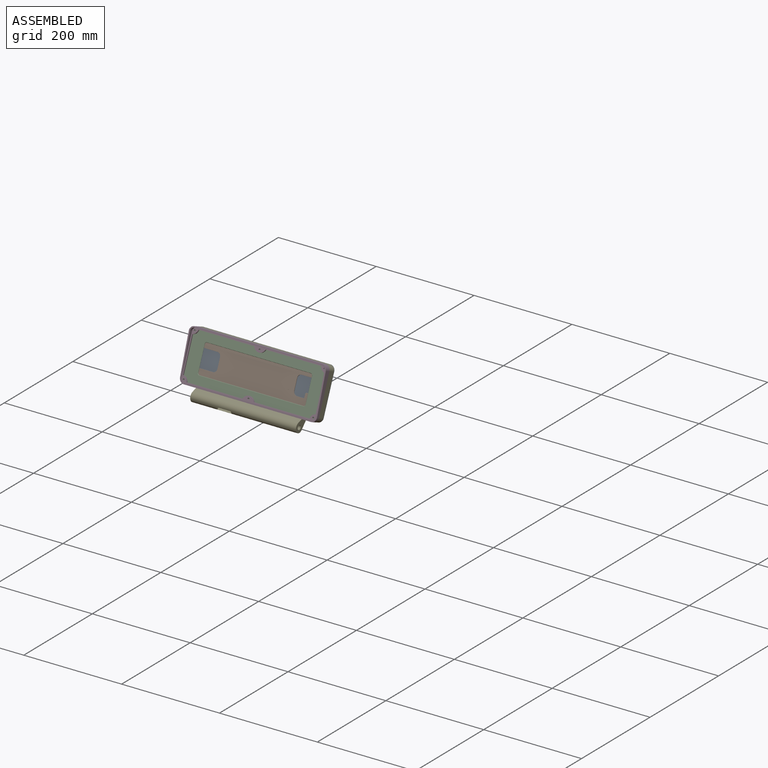
[diagram: assembled view]
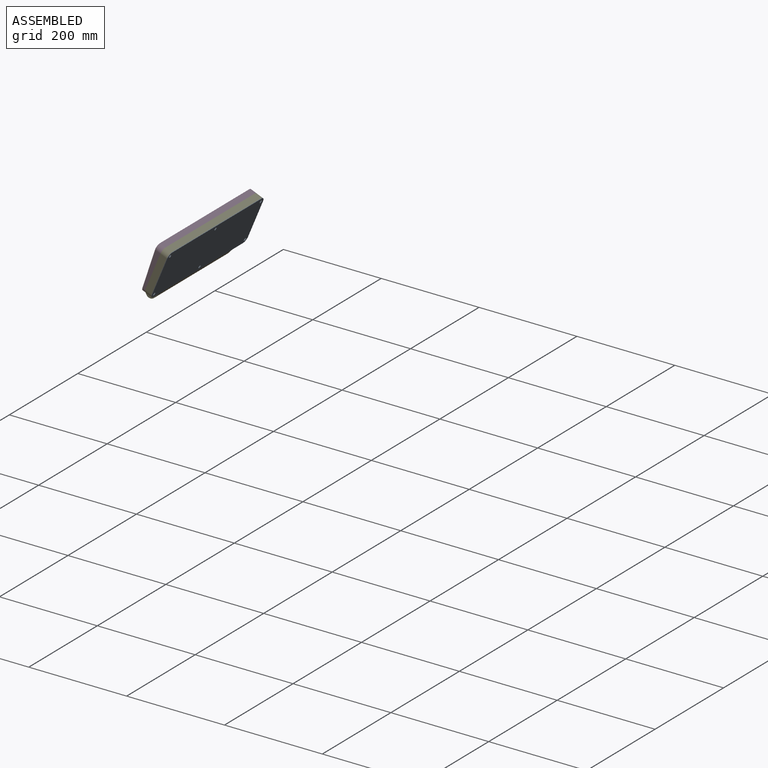
[diagram: assembled view, second angle]
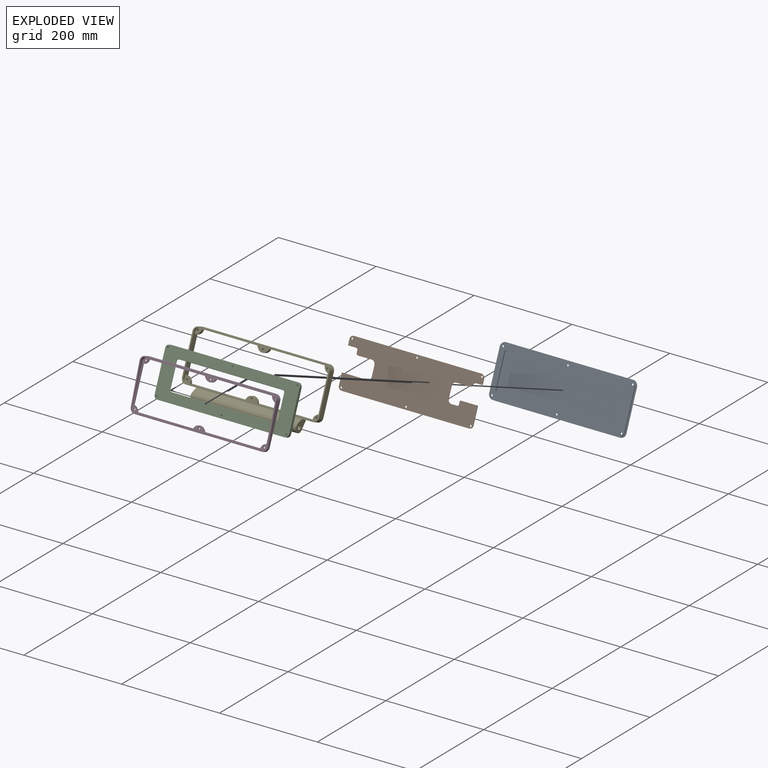
[diagram: exploded view]
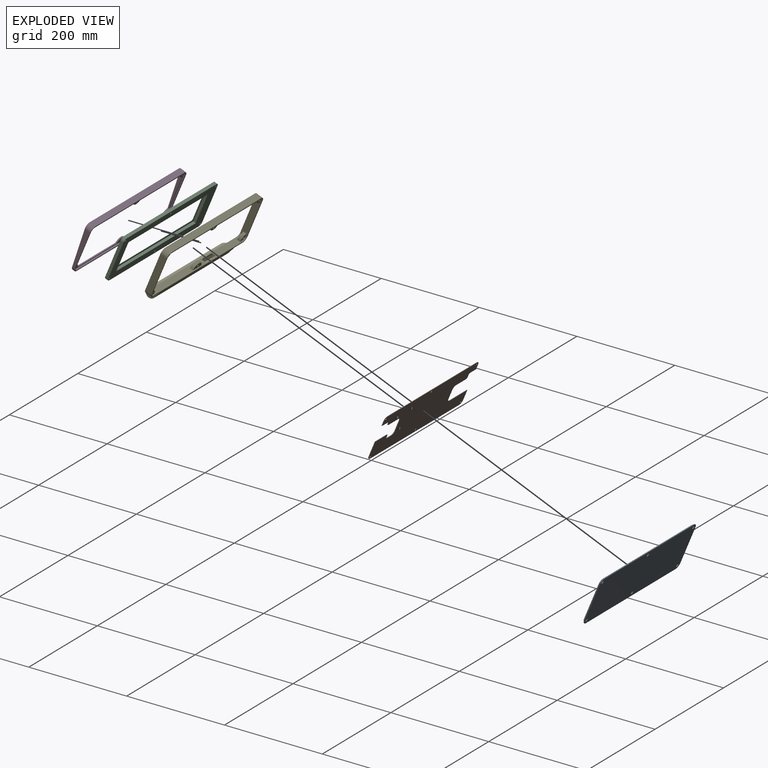
[diagram: exploded view, second angle]
FCSTD DOCUMENT  (FreeCAD 1.0R39319 (Git))
Label: Assembly_TopEnclosure0
License: All rights reserved
LicenseURL: https://en.wikipedia.org/wiki/All_rights_reserved
objects: App::FeaturePython×9, App::Link×5, Assembly::JointGroup×1, Assembly::AssemblyObject×1
EXTERNAL_REF file=TopEnclosureShell.FCStd obj=Body002
EXTERNAL_REF file=TopEnclosureDisplayFront.FCStd obj=Body
EXTERNAL_REF file=TopEnclosureDisplayBack_v3.FCStd obj=Body
EXTERNAL_REF file=TopEnclosureHood_v2.FCStd obj=Body
EXTERNAL_REF file=TopEnclosureBack_v2.FCStd obj=Body

FEATURE [App::Link] Top_Enclosure_Shell___2  label="Top Enclosure Shell - 2"
  LinkPlacement = pos=(0,4.5253,19.7273) rot=(1,0,0;1.1781rad)
  LinkedObject = -> <external TopEnclosureShell.FCStd>#Body002
  Placement = pos=(0,4.5253,19.7273) rot=(1,0,0;1.1781rad)
FEATURE [App::Link] Top_Enclosure_Display_Front  label="Top Enclosure Display Front"
  LinkPlacement = pos=(3e-15,-4.71349,23.5542) rot=(1,0,0;1.1781rad)
  LinkedObject = -> <external TopEnclosureDisplayFront.FCStd>#Body
  Placement = pos=(3e-15,-4.71349,23.5542) rot=(1,0,0;1.1781rad)
FEATURE [App::FeaturePython] GroundedJoint  # Assembly grounded joint (typed FeaturePython)
  ObjectToGround = -> Top_Enclosure_Shell___2
  Placement = pos=(0,4.5253,19.7273) rot=(1,0,0;1.1781rad)
FEATURE [App::Link] Top_Enclosure_Display_Back  label="Top Enclosure Display Back"
  LinkPlacement = pos=(0,-3.78961,23.1715) rot=(1,0,0;1.1781rad)
  LinkedObject = -> <external TopEnclosureDisplayBack_v3.FCStd>#Body
  Placement = pos=(0,-3.78961,23.1715) rot=(1,0,0;1.1781rad)
FEATURE [App::FeaturePython] Joint  label="Fixed"  # Assembly joint (typed FeaturePython)
  Activated = true
  AngleMax = 0
  AngleMin = 0
  Detach1 = false
  Detach2 = false
  Distance = 0
  Distance2 = 0
  EnableAngleMax = false
  EnableAngleMin = false
  EnableLengthMax = false
  EnableLengthMin = false
  JointType = 0 (Fixed)
  LengthMax = 0
  LengthMin = 0
  Placement1 = pos=(0,42.4,9) rot=(0,0,1;3.14159rad)
  Placement2 = pos=(0,42.4,5.3e-15) rot=(0,1,0;3.14159rad)
  Reference1 = -> Assembly [Top_Enclosure_Shell___2.Edge160,Top_Enclosure_Shell___2.Edge160]
  Reference2 = -> Assembly [Top_Enclosure_Display_Back.Edge38,Top_Enclosure_Display_Back.Edge38]
FEATURE [App::FeaturePython] Joint001  label="Fixed001"  # Assembly joint (typed FeaturePython)
  Activated = true
  AngleMax = 0
  AngleMin = 0
  Detach1 = false
  Detach2 = false
  Distance = 0
  Distance2 = 0
  EnableAngleMax = false
  EnableAngleMin = false
  EnableLengthMax = false
  EnableLengthMin = false
  JointType = 0 (Fixed)
  LengthMax = 0
  LengthMin = 0
  Placement1 = pos=(-132.4,42.4,9) rot=(0,0,1;3.14159rad)
  Placement2 = pos=(-132.4,42.4,5.3e-15) rot=(0,1,0;3.14159rad)
  Reference1 = -> Assembly [Top_Enclosure_Shell___2.Edge134,Top_Enclosure_Shell___2.Edge134]
  Reference2 = -> Assembly [Top_Enclosure_Display_Back.Edge37,Top_Enclosure_Display_Back.Edge37]
FEATURE [App::FeaturePython] Joint002  label="Fixed002"  # Assembly joint (typed FeaturePython)
  Activated = true
  AngleMax = 0
  AngleMin = 0
  Detach1 = false
  Detach2 = false
  Distance = 0
  Distance2 = 0
  EnableAngleMax = false
  EnableAngleMin = false
  EnableLengthMax = false
  EnableLengthMin = false
  JointType = 0 (Fixed)
  LengthMax = 0
  LengthMin = 0
  Placement1 = pos=(132.4,42.4,1) rot=(0,0,1;0rad)
  Placement2 = pos=(132.4,42.4,3.2e-14) rot=(0,0,1;0rad)
  Reference1 = -> Assembly [Top_Enclosure_Display_Back.Edge119,Top_Enclosure_Display_Back.Edge119]
  Reference2 = -> Assembly [Top_Enclosure_Display_Front.Edge66,Top_Enclosure_Display_Front.Edge66]
FEATURE [App::FeaturePython] Joint003  label="Fixed003"  # Assembly joint (typed FeaturePython)
  Activated = true
  AngleMax = 0
  AngleMin = 0
  Detach1 = false
  Detach2 = false
  Distance = 0
  Distance2 = 0
  EnableAngleMax = false
  EnableAngleMin = false
  EnableLengthMax = false
  EnableLengthMin = false
  JointType = 0 (Fixed)
  LengthMax = 0
  LengthMin = 0
  Placement1 = pos=(-132.4,-42.4,1) rot=(0,0,1;3.14159rad)
  Placement2 = pos=(-132.4,-42.4,-2.31e-14) rot=(0,0,1;3.14159rad)
  Reference1 = -> Assembly [Top_Enclosure_Display_Back.Edge109,Top_Enclosure_Display_Back.Edge109]
  Reference2 = -> Assembly [Top_Enclosure_Display_Front.Edge56,Top_Enclosure_Display_Front.Edge56]
FEATURE [App::Link] Top_Enclosure_Hood  label="Top Enclosure Hood"
  LinkPlacement = pos=(6.9e-15,-8.40901,25.0849) rot=(1,0,0;1.1781rad)
  LinkedObject = -> <external TopEnclosureHood_v2.FCStd>#Body
  Placement = pos=(6.9e-15,-8.40901,25.0849) rot=(1,0,0;1.1781rad)
FEATURE [App::FeaturePython] Joint004  label="Fixed004"  # Assembly joint (typed FeaturePython)
  Activated = true
  AngleMax = 0
  AngleMin = 0
  Detach1 = false
  Detach2 = false
  Distance = 0
  Distance2 = 0
  EnableAngleMax = false
  EnableAngleMin = false
  EnableLengthMax = false
  EnableLengthMin = false
  JointType = 0 (Fixed)
  LengthMax = 0
  LengthMin = 0
  Placement1 = pos=(130,40,14) rot=(0,0,1;0rad)
  Placement2 = pos=(130,40,0) rot=(0,0,1;0rad)
  Reference1 = -> Assembly [Top_Enclosure_Shell___2.Edge31,Top_Enclosure_Shell___2.Edge31]
  Reference2 = -> Assembly [Top_Enclosure_Hood.Edge9,Top_Enclosure_Hood.Edge9]
FEATURE [App::FeaturePython] Joint005  label="Fixed005"  # Assembly joint (typed FeaturePython)
  Activated = true
  AngleMax = 0
  AngleMin = 0
  Detach1 = false
  Detach2 = false
  Distance = 0
  Distance2 = 0
  EnableAngleMax = false
  EnableAngleMin = false
  EnableLengthMax = false
  EnableLengthMin = false
  JointType = 0 (Fixed)
  LengthMax = 0
  LengthMin = 0
  Placement1 = pos=(-130,-40,14) rot=(0,0,1;0rad)
  Placement2 = pos=(-130,-40,-7.1e-15) rot=(0,0,1;0rad)
  Reference1 = -> Assembly [Top_Enclosure_Shell___2.Edge10,Top_Enclosure_Shell___2.Edge10]
  Reference2 = -> Assembly [Top_Enclosure_Hood.Edge5,Top_Enclosure_Hood.Edge5]
FEATURE [App::Link] Top_Enclosure_Back  label="Top Enclosure Back"
  LinkPlacement = pos=(1e-14,2.40038,20.6075) rot=(1,0,0;4.31969rad)
  LinkedObject = -> <external TopEnclosureBack_v2.FCStd>#Body
  Placement = pos=(1e-14,2.40038,20.6075) rot=(1,0,0;4.31969rad)
FEATURE [App::FeaturePython] Joint006  label="Fixed006"  # Assembly joint (typed FeaturePython)
  Activated = true
  AngleMax = 0
  AngleMin = 0
  Detach1 = false
  Detach2 = false
  Distance = 0
  Distance2 = 0
  EnableAngleMax = false
  EnableAngleMin = false
  EnableLengthMax = false
  EnableLengthMin = false
  JointType = 0 (Fixed)
  LengthMax = 0
  LengthMin = 0
  Placement1 = pos=(130,-40,2.3) rot=(0,0,1;0rad)
  Placement2 = pos=(130,40,5.3e-15) rot=(0,0,1;0rad)
  Reference1 = -> Assembly [Top_Enclosure_Back.Edge36,Top_Enclosure_Back.Edge36]
  Reference2 = -> Assembly [Top_Enclosure_Shell___2.Edge16,Top_Enclosure_Shell___2.Edge16]
FEATURE [App::FeaturePython] Joint007  label="Fixed007"  # Assembly joint (typed FeaturePython)
  Activated = true
  AngleMax = 0
  AngleMin = 0
  Detach1 = false
  Detach2 = false
  Distance = 0
  Distance2 = 0
  EnableAngleMax = false
  EnableAngleMin = false
  EnableLengthMax = false
  EnableLengthMin = false
  JointType = 0 (Fixed)
  LengthMax = 0
  LengthMin = 0
  Placement1 = pos=(-130,-40,-4.4e-15) rot=(0,0,1;0rad)
  Placement2 = pos=(-130,40,2.3) rot=(0,0,1;0rad)
  Reference1 = -> Assembly [Top_Enclosure_Shell___2.Edge9,Top_Enclosure_Shell___2.Edge9]
  Reference2 = -> Assembly [Top_Enclosure_Back.Edge31,Top_Enclosure_Back.Edge31]
FEATURE [Assembly::JointGroup] Joints
  Group = -> [GroundedJoint,Joint,Joint001,Joint002,Joint003,Joint004,Joint005,Joint006,Joint007]
FEATURE [Assembly::AssemblyObject] Assembly
  Group = -> [Joints,Top_Enclosure_Shell___2,Top_Enclosure_Display_Front,GroundedJoint,Top_Enclosure_Display_Back,Joint,Joint001,Joint002,Joint003,Top_Enclosure_Hood,Joint004,Joint005,Top_Enclosure_Back,Joint006,Joint007]
  Origin = -> Origin
  Type = Assembly

RESOLVED EXTERNAL PARTS (link-assembly join: the EXTERNAL_REF files above that resolve inside this repo's crawl, each included once):
---- part TopEnclosureBack_v2.FCStd = doc fcstd_1d1bf80cae44 ----
FCSTD DOCUMENT  (FreeCAD 1.0R39319 (Git))
Label: TopEnclosureBack_v2
License: All rights reserved
LicenseURL: https://en.wikipedia.org/wiki/All_rights_reserved
objects: PartDesign::SubShapeBinder×4, Sketcher::SketchObject×3, PartDesign::Pocket×3, PartDesign::Mirrored×3, App::Link×2, PartDesign::Pad×2, PartDesign::Hole×2, PartDesign::MultiTransform×1, PartDesign::Body×1, App::VarSet×1
note: 40 computed .brp shape members not serialized (recipe doc carries the construction recipe); baked Part::Feature solids carry a one-line shape summary decoded from their .brp
EXTERNAL_REF file=TopEnclosure.FCStd obj=Sketch
EXTERNAL_REF file=TopEnclosure.FCStd obj=Link

FEATURE [App::Link] Link  label="MasterSketch"
  LinkedObject = -> <external TopEnclosure.FCStd>#Sketch
FEATURE [App::Link] Link001  label="Vars"
  LinkedObject = -> <external TopEnclosure.FCStd>#Link
FEATURE [PartDesign::SubShapeBinder] Binder
  BindCopyOnChange = 0
  BindMode = 0
  ClaimChildren = false
  Context = -> Body [Binder.]
  Fuse = false
  MakeFace = true
  OffsetFill = false
  OffsetIntersection = false
  OffsetJoinType = 0
  OffsetOpenResult = false
  PartialLoad = false
  Refine = true
  Relative = true
  Support = -> [Link[Edge13,Edge14,Edge15,Edge12,Edge11,Edge10,Edge9,Edge16]]
  _Version = 2
FEATURE [PartDesign::SubShapeBinder] Binder001
  BindCopyOnChange = 0
  BindMode = 0
  ClaimChildren = false
  Context = -> Body [Binder001.]
  Fuse = false
  MakeFace = true
  OffsetFill = false
  OffsetIntersection = false
  OffsetJoinType = 0
  OffsetOpenResult = false
  PartialLoad = false
  Placement = pos=(0,0,2.3) rot=(0,0,1;0rad)
  Refine = true
  Relative = true
  Support = -> [Link[Edge18,Edge17,Edge24,Edge23,Edge19,Edge22,Edge21,Edge20]]
  _Version = 2
  expr: .Placement.Base.z = <<LocalVars>>.bottom_offset
FEATURE [PartDesign::SubShapeBinder] Binder002
  BindCopyOnChange = 0
  BindMode = 0
  ClaimChildren = false
  Context = -> Body [Binder002.]
  Fuse = false
  MakeFace = true
  OffsetFill = false
  OffsetIntersection = false
  OffsetJoinType = 0
  OffsetOpenResult = false
  PartialLoad = false
  Refine = true
  Relative = true
  Support = -> [Link[Edge39]]
  _Version = 2
FEATURE [PartDesign::SubShapeBinder] Binder003
  BindCopyOnChange = 0
  BindMode = 0
  ClaimChildren = false
  Context = -> Body [Binder003.]
  Fuse = false
  MakeFace = true
  OffsetFill = false
  OffsetIntersection = false
  OffsetJoinType = 0
  OffsetOpenResult = false
  PartialLoad = false
  Refine = true
  Relative = true
  Support = -> [Link[Edge40]]
  _Version = 2
FEATURE [PartDesign::Pad] Pad
  Direction = (0,0,1)
  Length = 2.3
  Length2 = 10
  Profile = -> Binder
  Refine = true
  Suppressed = false
  Type = 0
  expr: Length = <<LocalVars>>.bottom_offset
FEATURE [PartDesign::Pad] Pad001
  BaseFeature = -> Pad
  Direction = (0,0,1)
  Length = 1
  Length2 = 10
  Profile = -> Binder001
  Refine = true
  Suppressed = false
  Type = 0
FEATURE [PartDesign::Hole] Hole
  BaseFeature = -> Pad001
  CustomThreadClearance = 0
  Depth = 600.733
  DepthType = 1
  Diameter = 3.6
  DrillForDepth = false
  DrillPoint = 1
  DrillPointAngle = 118
  HoleCutCountersinkAngle = 90
  HoleCutCustomValues = false
  HoleCutDepth = 0
  HoleCutDiameter = 6.1
  HoleCutType = 0
  ModelThread = false
  Profile = -> Binder002
  Refine = true
  Reversed = true
  Suppressed = false
  Tapered = false
  TaperedAngle = 90
  ThreadClass = 0
  ThreadDepth = 600.733
  ThreadDepthType = 0
  ThreadDirection = 0
  ThreadFit = 2
  ThreadSize = 9
  ThreadType = 1
  Threaded = false
  UseCustomThreadClearance = false
FEATURE [Sketcher::SketchObject] Sketch
  ArcFitTolerance = 1e-06
  AttachmentSupport = -> [Hole]
  ExternalGeometry = -> [Hole]
  FullyConstrained = true
  MakeInternals = false
  MapMode = 5
  Placement = pos=(0,0,3.3) rot=(0,0,1;0rad)
  expr: Constraints[19] = <<LocalVars>>.m3_nut_dia
  sketch-geometry (7):
    g0: LineSegment StartX=-129.1 StartY=42.4 StartZ=0 EndX=-130.75 EndY=45.2579 EndZ=0
    g1: LineSegment StartX=-130.75 StartY=45.2579 StartZ=0 EndX=-134.05 EndY=45.2579 EndZ=0
    g2: LineSegment StartX=-134.05 StartY=45.2579 StartZ=0 EndX=-135.7 EndY=42.4 EndZ=0
    g3: LineSegment StartX=-135.7 StartY=42.4 StartZ=0 EndX=-134.05 EndY=39.5421 EndZ=0
    g4: LineSegment StartX=-134.05 StartY=39.5421 StartZ=0 EndX=-130.75 EndY=39.5421 EndZ=0
    g5: LineSegment StartX=-130.75 StartY=39.5421 StartZ=0 EndX=-129.1 EndY=42.4 EndZ=0
    g6: Circle [constr] CenterX=-132.4 CenterY=42.4 CenterZ=0 NormalX=0 NormalY=0 NormalZ=1 AngleXU=0 Radius=3.3
  constraints (16):
    c: Coincident(g0,g1)
    c: Coincident(g1,g2)
    c: Coincident(g2,g3)
    c: Coincident(g3,g4)
    c: Coincident(g4,g5)
    c: Coincident(g5,g0)
    c: Equal(g0, g1-g5) x5
    c: PointOnObject(g0,g6)
    c: PointOnObject(g1,g6)
    c: PointOnObject(g2,g6)
    c: PointOnObject(g3,g6)
    c: PointOnObject(g4,g6)
    c: PointOnObject(g5,g6)
    c: Coincident(g6,g-3)
    c: Horizontal(g1)
    c: Diameter(g6) = 6.6
FEATURE [PartDesign::Pocket] Pocket
  BaseFeature = -> Hole
  Direction = (0,0,-1)
  Length = 3
  Length2 = 5
  Profile = -> Sketch
  ReferenceAxis = -> Sketch [N_Axis]
  Refine = true
  Suppressed = false
  Type = 0
FEATURE [PartDesign::Mirrored] Mirrored
  MirrorPlane = -> YZ_Plane
  Refine = true
  Suppressed = false
  TransformMode = 0
FEATURE [PartDesign::Mirrored] Mirrored001
  MirrorPlane = -> XZ_Plane
  Refine = true
  Suppressed = false
  TransformMode = 0
FEATURE [PartDesign::MultiTransform] MultiTransform
  BaseFeature = -> Pocket
  Originals = -> [Hole,Pocket]
  Refine = true
  Suppressed = false
  TransformMode = 0
  Transformations = -> [Mirrored,Mirrored001]
FEATURE [PartDesign::Hole] Hole001
  BaseFeature = -> MultiTransform
  CustomThreadClearance = 0
  Depth = 600.733
  DepthType = 1
  Diameter = 3.6
  DrillForDepth = false
  DrillPoint = 1
  DrillPointAngle = 118
  HoleCutCountersinkAngle = 90
  HoleCutCustomValues = false
  HoleCutDepth = 0
  HoleCutDiameter = 6.1
  HoleCutType = 0
  ModelThread = false
  Profile = -> Binder003
  Refine = true
  Reversed = true
  Suppressed = false
  Tapered = false
  TaperedAngle = 90
  ThreadClass = 0
  ThreadDepth = 600.733
  ThreadDepthType = 0
  ThreadDirection = 0
  ThreadFit = 2
  ThreadSize = 9
  ThreadType = 1
  Threaded = false
  UseCustomThreadClearance = false
FEATURE [Sketcher::SketchObject] Sketch001
  ArcFitTolerance = 1e-06
  AttachmentSupport = -> [Hole001]
  ExternalGeometry = -> [Hole001]
  FullyConstrained = true
  MakeInternals = false
  MapMode = 5
  Placement = pos=(0,0,3.3) rot=(0,0,1;0rad)
  expr: Constraints[19] = <<LocalVars>>.m3_nut_dia
  sketch-geometry (7):
    g0: LineSegment StartX=3.3 StartY=42.4 StartZ=0 EndX=1.65 EndY=45.2579 EndZ=0
    g1: LineSegment StartX=1.65 StartY=45.2579 StartZ=0 EndX=-1.65 EndY=45.2579 EndZ=0
    g2: LineSegment StartX=-1.65 StartY=45.2579 StartZ=0 EndX=-3.3 EndY=42.4 EndZ=0
    g3: LineSegment StartX=-3.3 StartY=42.4 StartZ=0 EndX=-1.65 EndY=39.5421 EndZ=0
    g4: LineSegment StartX=-1.65 StartY=39.5421 StartZ=0 EndX=1.65 EndY=39.5421 EndZ=0
    g5: LineSegment StartX=1.65 StartY=39.5421 StartZ=0 EndX=3.3 EndY=42.4 EndZ=0
    g6: Circle [constr] CenterX=0 CenterY=42.4 CenterZ=0 NormalX=0 NormalY=0 NormalZ=1 AngleXU=0 Radius=3.3
  constraints (16):
    c: Coincident(g0,g1)
    c: Coincident(g1,g2)
    c: Coincident(g2,g3)
    c: Coincident(g3,g4)
    c: Coincident(g4,g5)
    c: Coincident(g5,g0)
    c: Equal(g0, g1-g5) x5
    c: PointOnObject(g0,g6)
    c: PointOnObject(g1,g6)
    c: PointOnObject(g2,g6)
    c: PointOnObject(g3,g6)
    c: PointOnObject(g4,g6)
    c: PointOnObject(g5,g6)
    c: Coincident(g6,g-3)
    c: Horizontal(g1)
    c: Diameter(g6) = 6.6
FEATURE [PartDesign::Pocket] Pocket001
  BaseFeature = -> Hole001
  Direction = (0,0,-1)
  Length = 3
  Length2 = 5
  Profile = -> Sketch001
  ReferenceAxis = -> Sketch001 [N_Axis]
  Refine = true
  Suppressed = false
  Type = 0
FEATURE [PartDesign::Mirrored] Mirrored002
  BaseFeature = -> Pocket001
  MirrorPlane = -> XZ_Plane
  Originals = -> [Hole001,Pocket001]
  Refine = true
  Suppressed = false
  TransformMode = 0
FEATURE [Sketcher::SketchObject] Sketch002
  ArcFitTolerance = 1e-06
  AttachmentSupport = -> [XY_Plane]
  ExternalGeometry = -> [Mirrored002]
  FullyConstrained = true
  MakeInternals = false
  MapMode = 5
  sketch-geometry (12):
    g0: LineSegment StartX=127.4 StartY=-32.4 StartZ=0 EndX=127.4 EndY=32.4 EndZ=0
    g1: LineSegment StartX=122.4 StartY=37.4 StartZ=0 EndX=-122.4 EndY=37.4 EndZ=0
    g2: LineSegment StartX=-127.4 StartY=32.4 StartZ=0 EndX=-127.4 EndY=-32.4 EndZ=0
    g3: LineSegment StartX=-122.4 StartY=-37.4 StartZ=0 EndX=122.4 EndY=-37.4 EndZ=0
    g4: ArcOfCircle CenterX=122.4 CenterY=-32.4 CenterZ=0 NormalX=0 NormalY=0 NormalZ=1 AngleXU=0 Radius=5 StartAngle=4.71239 EndAngle=6.28319
    g5: ArcOfCircle CenterX=122.4 CenterY=32.4 CenterZ=0 NormalX=0 NormalY=0 NormalZ=1 AngleXU=0 Radius=5 StartAngle=0 EndAngle=1.5708
    g6: ArcOfCircle CenterX=-122.4 CenterY=32.4 CenterZ=0 NormalX=0 NormalY=0 NormalZ=1 AngleXU=0 Radius=5 StartAngle=1.5708 EndAngle=3.14159
    g7: ArcOfCircle CenterX=-122.4 CenterY=-32.4 CenterZ=0 NormalX=0 NormalY=0 NormalZ=1 AngleXU=0 Radius=5 StartAngle=3.14159 EndAngle=4.71239
    g8: GeomPoint [constr] X=-132.4 Y=42.4 Z=0
    g9: GeomPoint [constr] X=0 Y=0 Z=0
    g10: LineSegment [constr] StartX=0 StartY=47.4 StartZ=0 EndX=0 EndY=37.4 EndZ=0
    g11: LineSegment [constr] StartX=-127.4 StartY=32.4 StartZ=0 EndX=-137.4 EndY=32.4 EndZ=0
  constraints (27):
    c: Tangent(g0,g4) = -1.5708
    c: Tangent(g0,g5) = -1.5708
    c: Tangent(g1,g5) = -1.5708
    c: Tangent(g1,g6) = -1.5708
    c: Tangent(g2,g6) = -1.5708
    c: Tangent(g2,g7) = -1.5708
    c: Tangent(g3,g7) = -1.5708
    c: Tangent(g3,g4) = -1.5708
    c: Vertical(g0)
    c: Vertical(g2)
    c: Horizontal(g1)
    c: Horizontal(g3)
    c: Equal(g4,g5)
    c: Equal(g5,g6)
    c: Equal(g6,g7)
    c: Symmetric(g2,g0,g9)
    c: Coincident(g9,g-1)
    c: Coincident(g8,g-3)
    c: Diameter(g6) = 10
    c: PointOnObject(g10,g-5)
    c: PointOnObject(g10,g1)
    c: Symmetric(g10,g10,g-4)
    c: PointOnObject(g10,g-2)
    c: Coincident(g11,g2)
    c: PointOnObject(g11,g-6)
    c: Horizontal(g11)
    c: Equal(g11,g10)
FEATURE [PartDesign::Pocket] Pocket002
  BaseFeature = -> Mirrored002
  Direction = (0,0,-1)
  Length = 2.5
  Length2 = 5
  Profile = -> Sketch002
  ReferenceAxis = -> Sketch002 [N_Axis]
  Refine = true
  Reversed = true
  Suppressed = false
  Type = 0
FEATURE [PartDesign::Body] Body  label="Top Enclosure Back"
  AllowCompound = false
  Group = -> [Binder,Binder001,Binder002,Binder003,Pad,Pad001,Hole,Sketch,Pocket,MultiTransform,Mirrored,Mirrored001,Hole001,Sketch001,Pocket001,Mirrored002,Sketch002,Pocket002]
  Origin = -> Origin
  Tip = -> Pocket002
FEATURE [App::VarSet] VarSet  label="LocalVars"
  bottom_offset = 2.3
  m3_nut_dia = 6.6
  expr: bottom_offset = <<Vars>>.wall - <<Vars>>.clearance
  expr: m3_nut_dia = 6.2 + 2 * <<Vars>>.clearance
---- part TopEnclosureDisplayBack_v3.FCStd = doc fcstd_0404ac57b343 ----
FCSTD DOCUMENT  (FreeCAD 1.0R39319 (Git))
Label: TopEnclosureDisplayBack_v3
License: All rights reserved
LicenseURL: https://en.wikipedia.org/wiki/All_rights_reserved
objects: PartDesign::SubShapeBinder×7, PartDesign::Hole×3, PartDesign::Mirrored×3, Sketcher::SketchObject×3, App::Link×2, PartDesign::Pad×2, PartDesign::MultiTransform×1, PartDesign::Pocket×1, PartDesign::Chamfer×1, PartDesign::Body×1
note: 43 computed .brp shape members not serialized (recipe doc carries the construction recipe); baked Part::Feature solids carry a one-line shape summary decoded from their .brp
EXTERNAL_REF file=TopEnclosure.FCStd obj=Sketch
EXTERNAL_REF file=Spec.FCStd obj=Spreadsheet

FEATURE [App::Link] Link001  label="MasterSketch"
  LinkedObject = -> <external TopEnclosure.FCStd>#Sketch
FEATURE [PartDesign::SubShapeBinder] Binder
  BindCopyOnChange = 0
  BindMode = 0
  ClaimChildren = false
  Context = -> Body [Binder.]
  Fuse = false
  MakeFace = true
  OffsetFill = false
  OffsetIntersection = false
  OffsetJoinType = 0
  OffsetOpenResult = false
  PartialLoad = false
  Refine = true
  Relative = true
  Support = -> [Link001[Edge9,Edge10,Edge11,Edge12,Edge13,Edge14,Edge15,Edge16]]
  _Version = 2
FEATURE [PartDesign::SubShapeBinder] Binder001
  BindCopyOnChange = 0
  BindMode = 0
  ClaimChildren = false
  Context = -> Body [Binder001.]
  Fuse = false
  MakeFace = true
  OffsetFill = false
  OffsetIntersection = false
  OffsetJoinType = 0
  OffsetOpenResult = false
  PartialLoad = false
  Refine = true
  Relative = true
  Support = -> [Link001[Edge39]]
  _Version = 2
FEATURE [PartDesign::SubShapeBinder] Binder002
  BindCopyOnChange = 0
  BindMode = 0
  ClaimChildren = false
  Context = -> Body [Binder002.]
  Fuse = false
  MakeFace = true
  OffsetFill = false
  OffsetIntersection = false
  OffsetJoinType = 0
  OffsetOpenResult = false
  PartialLoad = false
  Refine = true
  Relative = true
  Support = -> [Link001[Edge40]]
  _Version = 2
FEATURE [PartDesign::Pad] Pad
  Direction = (0,0,1)
  Length = 1
  Length2 = 10
  Profile = -> Binder
  Refine = true
  Suppressed = false
  Type = 0
  expr: Length = <<Vars>>.top_enclosure_display_back_depth
FEATURE [PartDesign::Hole] Hole
  BaseFeature = -> Pad
  CustomThreadClearance = 0
  Depth = 25
  DepthType = 0
  Diameter = 3.6
  DrillForDepth = false
  DrillPoint = 1
  DrillPointAngle = 118
  HoleCutCountersinkAngle = 90
  HoleCutCustomValues = false
  HoleCutDepth = 0
  HoleCutDiameter = 6.1
  HoleCutType = 0
  ModelThread = false
  Profile = -> Binder001
  Refine = true
  Reversed = true
  Suppressed = false
  Tapered = false
  TaperedAngle = 90
  ThreadClass = 0
  ThreadDepth = 25
  ThreadDepthType = 0
  ThreadDirection = 0
  ThreadFit = 2
  ThreadSize = 9
  ThreadType = 1
  Threaded = false
  UseCustomThreadClearance = false
FEATURE [PartDesign::Mirrored] Mirrored
  MirrorPlane = -> YZ_Plane
  Refine = true
  Suppressed = false
  TransformMode = 0
FEATURE [PartDesign::Mirrored] Mirrored001
  MirrorPlane = -> XZ_Plane
  Refine = true
  Suppressed = false
  TransformMode = 0
FEATURE [PartDesign::MultiTransform] MultiTransform
  BaseFeature = -> Hole
  Originals = -> [Hole]
  Refine = true
  Suppressed = false
  TransformMode = 0
  Transformations = -> [Mirrored,Mirrored001]
FEATURE [PartDesign::Hole] Hole001
  BaseFeature = -> MultiTransform
  CustomThreadClearance = 0
  Depth = 25
  DepthType = 0
  Diameter = 3.6
  DrillForDepth = false
  DrillPoint = 1
  DrillPointAngle = 118
  HoleCutCountersinkAngle = 90
  HoleCutCustomValues = false
  HoleCutDepth = 0
  HoleCutDiameter = 6.1
  HoleCutType = 0
  ModelThread = false
  Profile = -> Binder002
  Refine = true
  Reversed = true
  Suppressed = false
  Tapered = false
  TaperedAngle = 90
  ThreadClass = 0
  ThreadDepth = 25
  ThreadDepthType = 0
  ThreadDirection = 0
  ThreadFit = 2
  ThreadSize = 9
  ThreadType = 1
  Threaded = false
  UseCustomThreadClearance = false
FEATURE [PartDesign::Mirrored] Mirrored002
  BaseFeature = -> Hole001
  MirrorPlane = -> XZ_Plane
  Originals = -> [Hole001]
  Refine = true
  Suppressed = false
  TransformMode = 0
FEATURE [PartDesign::SubShapeBinder] Binder003
  BindCopyOnChange = 0
  BindMode = 0
  ClaimChildren = false
  Context = -> Body [Binder003.]
  Fuse = false
  MakeFace = true
  OffsetFill = false
  OffsetIntersection = false
  OffsetJoinType = 0
  OffsetOpenResult = false
  PartialLoad = false
  Refine = true
  Relative = true
  Support = -> [Link001[Edge47]]
  _Version = 2
FEATURE [PartDesign::SubShapeBinder] Binder004
  BindCopyOnChange = 0
  BindMode = 0
  ClaimChildren = false
  Context = -> Body [Binder004.]
  Fuse = false
  MakeFace = true
  OffsetFill = false
  OffsetIntersection = false
  OffsetJoinType = 0
  OffsetOpenResult = false
  PartialLoad = false
  Refine = true
  Relative = true
  Support = -> [Link001[Edge35]]
  _Version = 2
FEATURE [Sketcher::SketchObject] Sketch001
  ArcFitTolerance = 1e-06
  AttachmentSupport = -> [XY_Plane]
  ExternalGeometry = -> [Binder004]
  FullyConstrained = true
  MakeInternals = false
  MapMode = 5
  sketch-geometry (34):
    g0: LineSegment StartX=88.25 StartY=14.75 StartZ=0 EndX=88.25 EndY=-10.25 EndZ=0
    g1: LineSegment StartX=49.25 StartY=28.25 StartZ=0 EndX=49.25 EndY=-10.25 EndZ=0
    g2: LineSegment StartX=52.25 StartY=-13.25 StartZ=0 EndX=106.25 EndY=-13.25 EndZ=0
    g3: LineSegment StartX=109.25 StartY=-10.25 StartZ=0 EndX=109.25 EndY=28.25 EndZ=0
    g4: LineSegment StartX=106.25 StartY=31.25 StartZ=0 EndX=52.25 EndY=31.25 EndZ=0
    g5: ArcOfCircle CenterX=52.25 CenterY=28.25 CenterZ=0 NormalX=0 NormalY=0 NormalZ=1 AngleXU=0 Radius=3 StartAngle=1.5708 EndAngle=3.14159
    g6: ArcOfCircle CenterX=52.25 CenterY=-10.25 CenterZ=0 NormalX=0 NormalY=0 NormalZ=1 AngleXU=0 Radius=3 StartAngle=3.14159 EndAngle=4.71239
    g7: ArcOfCircle CenterX=106.25 CenterY=-10.25 CenterZ=0 NormalX=0 NormalY=0 NormalZ=1 AngleXU=0 Radius=3 StartAngle=4.71239 EndAngle=6.28319
    g8: ArcOfCircle CenterX=106.25 CenterY=28.25 CenterZ=0 NormalX=0 NormalY=0 NormalZ=1 AngleXU=0 Radius=3 StartAngle=5e-16 EndAngle=1.5708
    g9: GeomPoint [constr] X=49.25 Y=31.25 Z=0
    g10: GeomPoint [constr] X=109.25 Y=-13.25 Z=0
    g11: LineSegment StartX=107.25 StartY=14.75 StartZ=0 EndX=107.25 EndY=-10.25 EndZ=0
    g12: Circle CenterX=52 CenterY=28.75 CenterZ=0 NormalX=0 NormalY=0 NormalZ=1 AngleXU=0 Radius=1.5
    g13: Circle CenterX=93.25 CenterY=27.65 CenterZ=0 NormalX=0 NormalY=0 NormalZ=1 AngleXU=0 Radius=1.5
    g14: Circle CenterX=66.25 CenterY=-9.65 CenterZ=0 NormalX=0 NormalY=0 NormalZ=1 AngleXU=0 Radius=1.5
    g15: LineSegment StartX=-112 StartY=-32.5 StartZ=0 EndX=-88 EndY=-32.5 EndZ=0
    g16: LineSegment StartX=-85 StartY=-29.5 StartZ=0 EndX=-85 EndY=29.5 EndZ=0
    g17: LineSegment StartX=-88 StartY=32.5 StartZ=0 EndX=-112 EndY=32.5 EndZ=0
    g18: LineSegment StartX=-115 StartY=29.5 StartZ=0 EndX=-115 EndY=-29.5 EndZ=0
    g19: ArcOfCircle CenterX=-112 CenterY=-29.5 CenterZ=0 NormalX=0 NormalY=0 NormalZ=1 AngleXU=0 Radius=3 StartAngle=3.14159 EndAngle=4.71239
    g20: ArcOfCircle CenterX=-88 CenterY=-29.5 CenterZ=0 NormalX=0 NormalY=0 NormalZ=1 AngleXU=0 Radius=3 StartAngle=4.71239 EndAngle=6.28319
    g21: ArcOfCircle CenterX=-88 CenterY=29.5 CenterZ=0 NormalX=0 NormalY=0 NormalZ=1 AngleXU=0 Radius=3 StartAngle=0 EndAngle=1.5708
    g22: ArcOfCircle CenterX=-112 CenterY=29.5 CenterZ=0 NormalX=0 NormalY=0 NormalZ=1 AngleXU=0 Radius=3 StartAngle=1.5708 EndAngle=3.14159
    g23: GeomPoint [constr] X=-85 Y=32.5 Z=0
    g24: GeomPoint [constr] X=-100 Y=0 Z=0
    g25: LineSegment [constr] StartX=-111.5 StartY=-29 StartZ=0 EndX=-88.5 EndY=-29 EndZ=0
    g26: LineSegment [constr] StartX=-88.5 StartY=-29 StartZ=0 EndX=-88.5 EndY=29 EndZ=0
    g27: LineSegment [constr] StartX=-88.5 StartY=29 StartZ=0 EndX=-111.5 EndY=29 EndZ=0
    g28: LineSegment [constr] StartX=-111.5 StartY=29 StartZ=0 EndX=-111.5 EndY=-29 EndZ=0
    g29: GeomPoint [constr] X=-100 Y=0 Z=0
    g30: Circle CenterX=-111.5 CenterY=29 CenterZ=0 NormalX=0 NormalY=0 NormalZ=1 AngleXU=0 Radius=1.375
    g31: Circle CenterX=-88.5 CenterY=29 CenterZ=0 NormalX=0 NormalY=0 NormalZ=1 AngleXU=0 Radius=1.375
    g32: Circle CenterX=-88.5 CenterY=-29 CenterZ=0 NormalX=0 NormalY=0 NormalZ=1 AngleXU=0 Radius=1.375
    g33: Circle CenterX=-112 CenterY=-29.5 CenterZ=0 NormalX=0 NormalY=0 NormalZ=1 AngleXU=0 Radius=1.375
  constraints (84):
    c: Vertical(g0)
    c: DistanceX(g0,g-3) = 30
    c: DistanceY(g-3,g0) = 22
    c: DistanceY(g0,g0) = 25
    c: Tangent(g1,g5) = -1.5708
    c: Tangent(g1,g6) = -1.5708
    c: Tangent(g2,g6) = -1.5708
    c: Tangent(g2,g7) = -1.5708
    c: Tangent(g3,g7) = -1.5708
    c: Tangent(g3,g8) = -1.5708
    c: Tangent(g4,g8) = -1.5708
    c: Tangent(g4,g5) = -1.5708
    c: Vertical(g1)
    c: Vertical(g3)
    c: Horizontal(g2)
    c: Horizontal(g4)
    c: Equal(g5,g6)
    c: Equal(g6,g7)
    c: Equal(g7,g8)
    c: PointOnObject(g9,g1)
    c: PointOnObject(g9,g4)
    c: PointOnObject(g10,g2)
    c: PointOnObject(g10,g3)
    c: DistanceX(g1,g3) = 60
    c: DistanceY(g2,g4) = 44.5
    c: Radius(g6) = 3
    c: Distance(g11) = 25
    c: Vertical(g11)
    c: DistanceY(g2,g11) = 3
    c: DistanceX(g11,g3) = 2
    c: Equal(g14,g13)
    c: Equal(g13,g12)
    c: Diameter(g13) = 3
    c: DistanceY(g12,g4) = 2.5
    c: DistanceX(g1,g12) = 2.75
    c: DistanceY(g2,g14) = 3.6
    c: DistanceX(g1,g14) = 17
    c: DistanceY(g13,g4) = 3.6
    c: DistanceX(g13,g3) = 16
    c: Tangent(g15,g19) = -1.5708
    c: Tangent(g15,g20) = -1.5708
    c: Tangent(g16,g20) = -1.5708
    c: Tangent(g16,g21) = -1.5708
    c: Tangent(g17,g21) = -1.5708
    c: Tangent(g17,g22) = -1.5708
    c: Tangent(g18,g22) = -1.5708
    c: Tangent(g18,g19) = -1.5708
    c: Horizontal(g15)
    c: Horizontal(g17)
    c: Vertical(g16)
    c: Vertical(g18)
    c: Equal(g19,g20)
    c: Equal(g20,g21)
    c: Equal(g21,g22)
    c: Symmetric(g17,g15,g24)
    c: PointOnObject(g23,g16)
    c: PointOnObject(g23,g17)
    c: Radius(g20) = 3
    c: PointOnObject(g24,g-1)
    c: DistanceX(g18,g16) = 30
    c: DistanceY(g15,g17) = 65
    c: DistanceX(g24,g-1) = 100
    c: Coincident(g25,g26)
    c: Coincident(g26,g27)
    c: Coincident(g27,g28)
    c: Coincident(g28,g25)
    c: Horizontal(g25)
    c: Horizontal(g27)
    c: Vertical(g26)
    c: Vertical(g28)
    c: Symmetric(g27,g25,g29)
    c: Coincident(g29,g24)
    c: DistanceY(g25,g27) = 58
    c: DistanceX(g27,g27) = 23
    c: Coincident(g30,g27)
    c: Diameter(g30) = 2.75
    c: Coincident(g31,g26)
    c: Coincident(g32,g25)
    c: Coincident(g33,g19)
    c: Equal(g33,g32)
    c: Equal(g32,g31)
    c: Equal(g31,g30)
    c: Horizontal(g11,g0)
    c: DistanceX(g13,g-3) = 25
FEATURE [Sketcher::SketchObject] Sketch
  ArcFitTolerance = 1e-06
  AttachmentSupport = -> [XY_Plane]
  ExternalGeometry = -> [Binder003,Sketch001,Binder]
  FullyConstrained = true
  MakeInternals = false
  MapMode = 5
  sketch-geometry (33):
    g0: LineSegment StartX=78.25 StartY=13.35 StartZ=0 EndX=78.25 EndY=-8.85 EndZ=0
    g1: LineSegment StartX=142.4 StartY=-6.25 StartZ=0 EndX=142.4 EndY=29.25 EndZ=0
    g2: ArcOfCircle CenterX=85.65 CenterY=13.35 CenterZ=0 NormalX=0 NormalY=0 NormalZ=1 AngleXU=0 Radius=7.4 StartAngle=1.5708 EndAngle=3.14159
    g3: ArcOfCircle CenterX=85.65 CenterY=-8.85 CenterZ=0 NormalX=0 NormalY=0 NormalZ=1 AngleXU=0 Radius=7.4 StartAngle=3.14159 EndAngle=4.71239
    g4: LineSegment StartX=-137.4 StartY=-17.5 StartZ=0 EndX=-85.65 EndY=-17.5 EndZ=0
    g5: LineSegment StartX=-78.25 StartY=-10.1 StartZ=0 EndX=-78.25 EndY=10.1 EndZ=0
    g6: LineSegment StartX=-137.4 StartY=29.25 StartZ=0 EndX=-137.4 EndY=-17.5 EndZ=0
    g7: ArcOfCircle CenterX=-85.65 CenterY=10.1 CenterZ=0 NormalX=0 NormalY=0 NormalZ=1 AngleXU=0 Radius=7.4 StartAngle=7.6e-15 EndAngle=1.5708
    g8: GeomPoint [constr] X=-78.25 Y=17.5 Z=0
    g9: ArcOfCircle CenterX=-85.65 CenterY=-10.1 CenterZ=0 NormalX=0 NormalY=0 NormalZ=1 AngleXU=0 Radius=7.4 StartAngle=4.71239 EndAngle=6.28319
    g10: GeomPoint [constr] X=-78.25 Y=-17.5 Z=0
    g11: LineSegment [constr] StartX=-78.25 StartY=0 StartZ=0 EndX=78.25 EndY=0 EndZ=0
    g12: LineSegment StartX=142.4 StartY=29.25 StartZ=0 EndX=120.75 EndY=29.25 EndZ=0
    g13: LineSegment StartX=85.65 StartY=20.75 StartZ=0 EndX=113.75 EndY=20.75 EndZ=0
    g14: LineSegment StartX=85.65 StartY=-16.25 StartZ=0 EndX=98.25 EndY=-16.25 EndZ=0
    g15: LineSegment StartX=117.25 StartY=25.75 StartZ=0 EndX=117.25 EndY=24.25 EndZ=0
    g16: ArcOfCircle CenterX=120.75 CenterY=25.75 CenterZ=0 NormalX=0 NormalY=0 NormalZ=1 AngleXU=0 Radius=3.5 StartAngle=1.5708 EndAngle=3.14159
    g17: GeomPoint [constr] X=117.25 Y=29.25 Z=0
    g18: ArcOfCircle CenterX=113.75 CenterY=24.25 CenterZ=0 NormalX=0 NormalY=0 NormalZ=1 AngleXU=0 Radius=3.5 StartAngle=4.71239 EndAngle=6.28319
    g19: GeomPoint [constr] X=117.25 Y=20.75 Z=0
    g20: LineSegment StartX=100.75 StartY=-13.75 StartZ=0 EndX=100.75 EndY=-8.75 EndZ=0
    g21: LineSegment StartX=103.25 StartY=-6.25 StartZ=0 EndX=142.4 EndY=-6.25 EndZ=0
    g22: ArcOfCircle CenterX=98.25 CenterY=-13.75 CenterZ=0 NormalX=0 NormalY=0 NormalZ=1 AngleXU=0 Radius=2.5 StartAngle=4.71239 EndAngle=6.28319
    g23: GeomPoint [constr] X=100.75 Y=-16.25 Z=0
    g24: ArcOfCircle CenterX=103.25 CenterY=-8.75 CenterZ=0 NormalX=0 NormalY=0 NormalZ=1 AngleXU=0 Radius=2.5 StartAngle=1.5708 EndAngle=3.14159
    g25: GeomPoint [constr] X=100.75 Y=-6.25 Z=0
    g26: LineSegment StartX=-137.4 StartY=29.25 StartZ=0 EndX=-120.9 EndY=29.25 EndZ=0
    g27: LineSegment StartX=-85.65 StartY=17.5 StartZ=0 EndX=-113.9 EndY=17.5 EndZ=0
    g28: LineSegment StartX=-117.4 StartY=25.75 StartZ=0 EndX=-117.4 EndY=21 EndZ=0
    g29: ArcOfCircle CenterX=-120.9 CenterY=25.75 CenterZ=0 NormalX=0 NormalY=0 NormalZ=1 AngleXU=0 Radius=3.5 StartAngle=0 EndAngle=1.5708
    g30: GeomPoint [constr] X=-117.4 Y=29.25 Z=0
    g31: ArcOfCircle CenterX=-113.9 CenterY=21 CenterZ=0 NormalX=0 NormalY=0 NormalZ=1 AngleXU=0 Radius=3.5 StartAngle=3.14159 EndAngle=4.71239
    g32: GeomPoint [constr] X=-117.4 Y=17.5 Z=0
  constraints (81):
    c: Coincident(g1,g12)
    c: Vertical(g0)
    c: DistanceY(g-3,g1) = 2
    c: DistanceX(g-4,g1) = 5
    c: Tangent(g0,g2) = -1.5708
    c: Tangent(g0,g3) = -1.5708
    c: Equal(g3,g2)
    c: Equal(g2,g-4)
    c: DistanceX(g0,g-6) = 10
    c: Coincident(g6,g4)
    c: Horizontal(g4)
    c: Vertical(g5)
    c: Vertical(g6)
    c: PointOnObject(g8,g5)
    c: Tangent(g5,g7) = -1.5708
    c: PointOnObject(g10,g4)
    c: PointOnObject(g10,g5)
    c: Tangent(g4,g9) = -1.5708
    c: Tangent(g5,g9) = -1.5708
    c: Equal(g9,g7)
    c: Equal(g7,g2)
    c: PointOnObject(g11,g0)
    c: Horizontal(g11)
    c: Symmetric(g11,g11,g-1)
    c: Symmetric(g5,g5,g11)
    c: Vertical(g6,g-7)
    c: Horizontal(g12)
    c: DistanceX(g17,g-3) = 5
    c: Horizontal(g13)
    c: Horizontal(g14)
    c: Vertical(g15)
    c: Tangent(g13,g2) = 1.5708
    c: Tangent(g14,g3) = -1.5708
    c: DistanceY(g-6,g2) = 6
    c: DistanceY(g3,g-6) = 6
    c: PointOnObject(g17,g12)
    c: PointOnObject(g17,g15)
    c: Tangent(g12,g16) = -1.5708
    c: Tangent(g15,g16) = -1.5708
    c: PointOnObject(g19,g13)
    c: PointOnObject(g19,g15)
    c: Tangent(g13,g18) = -1.5708
    c: Tangent(g15,g18) = 1.5708
    c: Equal(g16,g18)
    c: Vertical(g1)
    c: Diameter(g16) = 7
    c: Vertical(g20)
    c: Horizontal(g21)
    c: Coincident(g1,g21)
    c: PointOnObject(g23,g14)
    c: PointOnObject(g23,g20)
    c: Tangent(g14,g22) = -1.5708
    c: Tangent(g20,g22) = -1.5708
    c: PointOnObject(g25,g20)
    c: PointOnObject(g25,g21)
    c: Tangent(g20,g24) = 1.5708
    c: Tangent(g21,g24) = 1.5708
    c: Equal(g22,g24)
    c: Diameter(g22) = 5
    c: DistanceY(g14,g21) = 10
    c: DistanceX(g0,g21) = 25
    c: Horizontal(g26)
    c: Horizontal(g27)
    c: PointOnObject(g8,g27)
    c: Coincident(g6,g26)
    c: DistanceY(g4,g7) = 35
    c: Tangent(g27,g7) = -1.5708
    c: Horizontal(g12,g30)
    c: Distance(g12) = 21.65
    c: Distance(g26,g30) = 20
    c: Vertical(g28)
    c: PointOnObject(g30,g26)
    c: PointOnObject(g30,g28)
    c: Tangent(g26,g29) = 1.5708
    c: Tangent(g28,g29) = 1.5708
    c: PointOnObject(g32,g27)
    c: PointOnObject(g32,g28)
    c: Tangent(g27,g31) = 1.5708
    c: Tangent(g28,g31) = -1.5708
    c: Equal(g31,g29)
    c: Equal(g29,g18)
FEATURE [PartDesign::Pocket] Pocket
  BaseFeature = -> Mirrored002
  Direction = (0,0,-1)
  Length = 5
  Length2 = 5
  Profile = -> Sketch
  ReferenceAxis = -> Sketch [N_Axis]
  Refine = true
  Reversed = true
  Suppressed = false
  Type = 1
FEATURE [Sketcher::SketchObject] Sketch002
  ArcFitTolerance = 1e-06
  AttachmentOffset = pos=(0,0,-2) rot=(0,0,1;0rad)
  AttachmentSupport = -> [XY_Plane]
  ExternalGeometry = -> [Sketch001]
  FullyConstrained = true
  MakeInternals = false
  MapMode = 5
  Placement = pos=(0,0,-2) rot=(0,0,1;0rad)
  expr: .AttachmentOffset.Base.z = -2
  sketch-geometry (7):
    g0: Circle CenterX=-111.5 CenterY=29 CenterZ=0 NormalX=0 NormalY=0 NormalZ=1 AngleXU=0 Radius=2.5
    g1: Circle CenterX=-88.5 CenterY=29 CenterZ=0 NormalX=0 NormalY=0 NormalZ=1 AngleXU=0 Radius=2.5
    g2: Circle CenterX=-112 CenterY=-29.5 CenterZ=0 NormalX=0 NormalY=0 NormalZ=1 AngleXU=0 Radius=2.5
    g3: Circle CenterX=-88.5 CenterY=-29 CenterZ=0 NormalX=0 NormalY=0 NormalZ=1 AngleXU=0 Radius=2.5
    g4: Circle CenterX=66.25 CenterY=-9.65 CenterZ=0 NormalX=0 NormalY=0 NormalZ=1 AngleXU=0 Radius=2.5
    g5: Circle CenterX=93.25 CenterY=27.65 CenterZ=0 NormalX=0 NormalY=0 NormalZ=1 AngleXU=0 Radius=2.5
    g6: Circle CenterX=52 CenterY=28.75 CenterZ=0 NormalX=0 NormalY=0 NormalZ=1 AngleXU=0 Radius=2.5
  constraints (14):
    c: Coincident(g0,g-4)
    c: Coincident(g1,g-3)
    c: Coincident(g2,g-5)
    c: Coincident(g3,g-6)
    c: Coincident(g4,g-7)
    c: Coincident(g5,g-9)
    c: Coincident(g6,g-8)
    c: Equal(g0,g2)
    c: Equal(g2,g3)
    c: Equal(g3,g1)
    c: Equal(g1,g4)
    c: Equal(g4,g6)
    c: Equal(g6,g5)
    c: Diameter(g0) = 5
FEATURE [PartDesign::SubShapeBinder] Binder005
  BindCopyOnChange = 0
  BindMode = 0
  ClaimChildren = false
  Context = -> Body [Binder005.]
  Fuse = false
  MakeFace = true
  OffsetFill = false
  OffsetIntersection = false
  OffsetJoinType = 0
  OffsetOpenResult = false
  PartialLoad = false
  Refine = true
  Relative = true
  Support = -> [Sketch002[Edge7,Edge6,Edge5]]
  _Version = 2
FEATURE [App::Link] Link  label="Vars"
  LinkedObject = -> <external Spec.FCStd>#Spreadsheet
FEATURE [PartDesign::SubShapeBinder] Binder006
  BindCopyOnChange = 0
  BindMode = 0
  ClaimChildren = false
  Context = -> Body [Binder006.]
  Fuse = false
  MakeFace = true
  OffsetFill = false
  OffsetIntersection = false
  OffsetJoinType = 0
  OffsetOpenResult = false
  PartialLoad = false
  Refine = true
  Relative = true
  Support = -> [Binder005]
  _Version = 2
FEATURE [PartDesign::Pad] Pad001
  BaseFeature = -> Pocket
  Direction = (0,0,1)
  Length = 10
  Length2 = 10
  Profile = -> Binder005
  Refine = true
  Suppressed = false
  Type = 2
FEATURE [PartDesign::Hole] Hole002
  BaseFeature = -> Pad001
  CustomThreadClearance = 0
  Depth = 3
  DepthType = 0
  Diameter = 1
  DrillForDepth = false
  DrillPoint = 1
  DrillPointAngle = 118
  HoleCutCountersinkAngle = 90
  HoleCutCustomValues = false
  HoleCutDepth = 0
  HoleCutDiameter = 6.1
  HoleCutType = 0
  ModelThread = false
  Profile = -> Binder006
  Refine = true
  Reversed = true
  Suppressed = false
  Tapered = false
  TaperedAngle = 90
  ThreadClass = 0
  ThreadDepth = 3
  ThreadDepthType = 0
  ThreadDirection = 0
  ThreadFit = 0
  ThreadSize = 0
  ThreadType = 0
  Threaded = false
  UseCustomThreadClearance = false
FEATURE [PartDesign::Chamfer] Chamfer
  Angle = 45
  Base = -> Hole002 [Edge43,Edge45,Edge47]
  BaseFeature = -> Hole002
  ChamferType = 0
  FlipDirection = false
  Refine = true
  Size = 1
  Size2 = 1
  SupportTransform = false
  Suppressed = false
  UseAllEdges = false
FEATURE [PartDesign::Body] Body  label="Top Enclosure Display Back"
  AllowCompound = false
  Group = -> [Binder002,Binder001,Binder,Pad,Hole,MultiTransform,Mirrored,Mirrored001,Hole001,Mirrored002,Sketch,Binder003,Pocket,Sketch001,Binder004,Sketch002,Binder005,Binder006,Pad001,Hole002,Chamfer]
  Origin = -> Origin
  Tip = -> Chamfer
---- part TopEnclosureDisplayFront.FCStd = doc fcstd_d4a49ea3fe33 ----
FCSTD DOCUMENT  (FreeCAD 1.0R39319 (Git))
Label: TopEnclosureDisplayFront
License: All rights reserved
LicenseURL: https://en.wikipedia.org/wiki/All_rights_reserved
objects: PartDesign::SubShapeBinder×5, PartDesign::Mirrored×3, App::Link×2, PartDesign::Pocket×2, PartDesign::Hole×2, PartDesign::Pad×1, PartDesign::MultiTransform×1, PartDesign::Chamfer×1, PartDesign::Body×1
note: 32 computed .brp shape members not serialized (recipe doc carries the construction recipe); baked Part::Feature solids carry a one-line shape summary decoded from their .brp
EXTERNAL_REF file=TopEnclosure.FCStd obj=Sketch
EXTERNAL_REF file=Spec.FCStd obj=Spreadsheet

FEATURE [App::Link] Link  label="MasterSketch"
  LinkedObject = -> <external TopEnclosure.FCStd>#Sketch
FEATURE [PartDesign::SubShapeBinder] Binder
  BindCopyOnChange = 0
  BindMode = 0
  ClaimChildren = false
  Context = -> Body [Binder.]
  Fuse = false
  MakeFace = true
  OffsetFill = false
  OffsetIntersection = false
  OffsetJoinType = 0
  OffsetOpenResult = false
  PartialLoad = false
  Refine = true
  Relative = true
  Support = -> [Link[Edge10,Edge9,Edge11,Edge12,Edge13,Edge14,Edge15,Edge16]]
  _Version = 2
FEATURE [PartDesign::SubShapeBinder] Binder001
  BindCopyOnChange = 0
  BindMode = 0
  ClaimChildren = false
  Context = -> Body [Binder001.]
  Fuse = false
  MakeFace = true
  OffsetFill = false
  OffsetIntersection = false
  OffsetJoinType = 0
  OffsetOpenResult = false
  PartialLoad = false
  Refine = true
  Relative = true
  Support = -> [Link[Edge39]]
  _Version = 2
FEATURE [PartDesign::SubShapeBinder] Binder002
  BindCopyOnChange = 0
  BindMode = 0
  ClaimChildren = false
  Context = -> Body [Binder002.]
  Fuse = false
  MakeFace = true
  OffsetFill = false
  OffsetIntersection = false
  OffsetJoinType = 0
  OffsetOpenResult = false
  PartialLoad = false
  Refine = true
  Relative = true
  Support = -> [Link[Edge40]]
  _Version = 2
FEATURE [PartDesign::SubShapeBinder] Binder004
  BindCopyOnChange = 0
  BindMode = 0
  ClaimChildren = false
  Context = -> Body [Binder004.]
  Fuse = false
  MakeFace = true
  OffsetFill = false
  OffsetIntersection = false
  OffsetJoinType = 0
  OffsetOpenResult = false
  PartialLoad = false
  Refine = true
  Relative = true
  Support = -> [Link[Edge35,Edge36,Edge33,Edge34]]
  _Version = 2
FEATURE [PartDesign::SubShapeBinder] Binder005
  BindCopyOnChange = 0
  BindMode = 0
  ClaimChildren = false
  Context = -> Body [Binder005.]
  Fuse = false
  MakeFace = true
  OffsetFill = false
  OffsetIntersection = false
  OffsetJoinType = 0
  OffsetOpenResult = false
  PartialLoad = false
  Refine = true
  Relative = true
  Support = -> [Link[Edge26,Edge25,Edge27,Edge32,Edge31,Edge28,Edge29,Edge30]]
  _Version = 2
FEATURE [App::Link] Link001  label="Vars"
  LinkedObject = -> <external Spec.FCStd>#Spreadsheet
FEATURE [PartDesign::Pad] Pad
  Direction = (0,0,1)
  Length = 6.5
  Length2 = 10
  Profile = -> Binder
  Refine = true
  Suppressed = false
  Type = 0
  expr: Length = <<Vars>>.display_depth + <<Vars>>.top_enclosure_front_depth
FEATURE [PartDesign::Pocket] Pocket
  BaseFeature = -> Pad
  Direction = (0,0,-1)
  Length = 5
  Length2 = 5
  Profile = -> Binder005
  Refine = true
  Reversed = true
  Suppressed = false
  Type = 1
FEATURE [PartDesign::Pocket] Pocket001
  BaseFeature = -> Pocket
  Direction = (0,0,-1)
  Length = 5.5
  Length2 = 5
  Profile = -> Binder004
  Refine = true
  Reversed = true
  Suppressed = false
  Type = 0
  expr: Length = <<Vars>>.display_depth
FEATURE [PartDesign::Hole] Hole
  BaseFeature = -> Pocket001
  CustomThreadClearance = 0
  Depth = 25
  DepthType = 0
  Diameter = 3.6
  DrillForDepth = false
  DrillPoint = 1
  DrillPointAngle = 118
  HoleCutCountersinkAngle = 90
  HoleCutCustomValues = false
  HoleCutDepth = 0
  HoleCutDiameter = 6.1
  HoleCutType = 0
  ModelThread = false
  Profile = -> Binder001
  Refine = true
  Reversed = true
  Suppressed = false
  Tapered = false
  TaperedAngle = 90
  ThreadClass = 0
  ThreadDepth = 25
  ThreadDepthType = 0
  ThreadDirection = 0
  ThreadFit = 2
  ThreadSize = 9
  ThreadType = 1
  Threaded = false
  UseCustomThreadClearance = false
FEATURE [PartDesign::Mirrored] Mirrored
  MirrorPlane = -> YZ_Plane
  Refine = true
  Suppressed = false
  TransformMode = 0
FEATURE [PartDesign::Mirrored] Mirrored001
  MirrorPlane = -> XZ_Plane
  Refine = true
  Suppressed = false
  TransformMode = 0
FEATURE [PartDesign::MultiTransform] MultiTransform
  BaseFeature = -> Hole
  Originals = -> [Hole]
  Refine = true
  Suppressed = false
  TransformMode = 0
  Transformations = -> [Mirrored,Mirrored001]
FEATURE [PartDesign::Hole] Hole001
  BaseFeature = -> MultiTransform
  CustomThreadClearance = 0
  Depth = 25
  DepthType = 0
  Diameter = 3.6
  DrillForDepth = false
  DrillPoint = 1
  DrillPointAngle = 118
  HoleCutCountersinkAngle = 90
  HoleCutCustomValues = false
  HoleCutDepth = 0
  HoleCutDiameter = 6.1
  HoleCutType = 0
  ModelThread = false
  Profile = -> Binder002
  Refine = true
  Reversed = true
  Suppressed = false
  Tapered = false
  TaperedAngle = 90
  ThreadClass = 0
  ThreadDepth = 25
  ThreadDepthType = 0
  ThreadDirection = 0
  ThreadFit = 2
  ThreadSize = 9
  ThreadType = 1
  Threaded = false
  UseCustomThreadClearance = false
FEATURE [PartDesign::Mirrored] Mirrored002
  BaseFeature = -> Hole001
  MirrorPlane = -> XZ_Plane
  Originals = -> [Hole001]
  Refine = true
  Suppressed = false
  TransformMode = 0
FEATURE [PartDesign::Chamfer] Chamfer
  Angle = 45
  Base = -> Mirrored002 [Edge39]
  BaseFeature = -> Mirrored002
  ChamferType = 0
  FlipDirection = false
  Refine = true
  Size = 0.5
  Size2 = 1
  SupportTransform = false
  Suppressed = false
  UseAllEdges = false
FEATURE [PartDesign::Body] Body  label="Top Enclosure Display Front"
  AllowCompound = false
  Group = -> [Binder,Binder001,Binder002,Binder004,Binder005,Pad,Pocket,Pocket001,Hole,MultiTransform,Mirrored,Mirrored001,Hole001,Mirrored002,Chamfer]
  Origin = -> Origin
  Tip = -> Chamfer
---- part TopEnclosureHood_v2.FCStd = doc fcstd_baf8cbb0d794 ----
FCSTD DOCUMENT  (FreeCAD 1.0R39319 (Git))
Label: TopEnclosureHood_v2
License: All rights reserved
LicenseURL: https://en.wikipedia.org/wiki/All_rights_reserved
objects: PartDesign::SubShapeBinder×6, Sketcher::SketchObject×4, PartDesign::Pad×4, PartDesign::Mirrored×3, App::Link×2, PartDesign::Hole×2, App::VarSet×1, PartDesign::MultiTransform×1, PartDesign::Pocket×1, PartDesign::Body×1
note: 44 computed .brp shape members not serialized (recipe doc carries the construction recipe); baked Part::Feature solids carry a one-line shape summary decoded from their .brp
EXTERNAL_REF file=TopEnclosure.FCStd obj=Sketch
EXTERNAL_REF file=Spec.FCStd obj=Spreadsheet

FEATURE [App::Link] Link  label="MasterSketch"
  LinkedObject = -> <external TopEnclosure.FCStd>#Sketch
FEATURE [PartDesign::SubShapeBinder] Binder
  BindCopyOnChange = 0
  BindMode = 0
  ClaimChildren = false
  Context = -> Body [Binder.]
  Fuse = false
  MakeFace = true
  OffsetFill = false
  OffsetIntersection = false
  OffsetJoinType = 0
  OffsetOpenResult = false
  PartialLoad = false
  Refine = true
  Relative = true
  Support = -> [Link[Edge17,Edge24,Edge18,Edge2,Edge1,Edge3,Edge19,Edge20]]
  _Version = 2
FEATURE [PartDesign::SubShapeBinder] Binder001
  BindCopyOnChange = 0
  BindMode = 0
  ClaimChildren = false
  Context = -> Body [Binder001.]
  Fuse = false
  MakeFace = true
  OffsetFill = false
  OffsetIntersection = false
  OffsetJoinType = 0
  OffsetOpenResult = false
  PartialLoad = false
  Refine = true
  Relative = true
  Support = -> [Link[Edge37]]
  _Version = 2
FEATURE [Sketcher::SketchObject] Sketch
  ArcFitTolerance = 1e-06
  AttachmentOffset = pos=(0,0,3.1) rot=(0,0,1;0rad)
  AttachmentSupport = -> [XY_Plane]
  ExternalGeometry = -> [Binder,Binder001]
  FullyConstrained = true
  MakeInternals = false
  MapMode = 5
  Placement = pos=(0,0,3.1) rot=(0,0,1;0rad)
  expr: .AttachmentOffset.Base.z = <<LocalVars>>.bottom_offset
  sketch-geometry (4):
    g0: LineSegment StartX=-137.5 StartY=40 StartZ=0 EndX=-137.5 EndY=35.205 EndZ=0
    g1: LineSegment StartX=-130 StartY=47.5 StartZ=0 EndX=-125.205 EndY=47.5 EndZ=0
    g2: ArcOfCircle CenterX=-137.703 CenterY=47.7033 CenterZ=0 NormalX=0 NormalY=0 NormalZ=1 AngleXU=0 Radius=12.5 StartAngle=4.72865 EndAngle=6.26692
    g3: ArcOfCircle CenterX=-130 CenterY=40 CenterZ=0 NormalX=0 NormalY=0 NormalZ=1 AngleXU=0 Radius=7.5 StartAngle=1.5708 EndAngle=3.14159
  constraints (9):
    c: Coincident(g0,g-3)
    c: PointOnObject(g0,g-4)
    c: Vertical(g0)
    c: Coincident(g1,g-3)
    c: Tangent(g3,g0) = -1.5708
    c: Coincident(g1,g2)
    c: Coincident(g0,g2)
    c: Tangent(g3,g1) = 1.5708
    c: Coincident(g2,g-4)
FEATURE [PartDesign::SubShapeBinder] Binder002
  BindCopyOnChange = 0
  BindMode = 0
  ClaimChildren = false
  Context = -> Body [Binder002.]
  Fuse = false
  MakeFace = true
  OffsetFill = false
  OffsetIntersection = false
  OffsetJoinType = 0
  OffsetOpenResult = false
  PartialLoad = false
  Refine = true
  Relative = true
  Support = -> [Link[Edge39]]
  _Version = 2
FEATURE [PartDesign::SubShapeBinder] Binder003
  BindCopyOnChange = 0
  BindMode = 0
  ClaimChildren = false
  Context = -> Body [Binder003.]
  Fuse = false
  MakeFace = true
  OffsetFill = false
  OffsetIntersection = false
  OffsetJoinType = 0
  OffsetOpenResult = false
  PartialLoad = false
  Refine = true
  Relative = true
  Support = -> [Link[Edge38]]
  _Version = 2
FEATURE [PartDesign::SubShapeBinder] Binder004
  BindCopyOnChange = 0
  BindMode = 0
  ClaimChildren = false
  Context = -> Body [Binder004.]
  Fuse = false
  MakeFace = true
  OffsetFill = false
  OffsetIntersection = false
  OffsetJoinType = 0
  OffsetOpenResult = false
  PartialLoad = false
  Refine = true
  Relative = true
  Support = -> [Link[Edge40]]
  _Version = 2
FEATURE [Sketcher::SketchObject] Sketch001
  ArcFitTolerance = 1e-06
  AttachmentOffset = pos=(0,0,3.1) rot=(0,0,1;0rad)
  AttachmentSupport = -> [XY_Plane]
  ExternalGeometry = -> [Binder,Binder003]
  FullyConstrained = true
  MakeInternals = false
  MapMode = 5
  Placement = pos=(0,0,3.1) rot=(0,0,1;0rad)
  expr: .AttachmentOffset.Base.z = <<LocalVars>>.bottom_offset
  sketch-geometry (2):
    g0: LineSegment StartX=12.2674 StartY=47.5 StartZ=0 EndX=-12.2674 EndY=47.5 EndZ=0
    g1: ArcOfCircle CenterX=0 CenterY=49.9 CenterZ=0 NormalX=0 NormalY=0 NormalZ=1 AngleXU=0 Radius=12.5 StartAngle=3.33479 EndAngle=6.08999
  constraints (6):
    c: PointOnObject(g0,g-3)
    c: PointOnObject(g0,g-3)
    c: Coincident(g1,g-4)
    c: PointOnObject(g1,g-4)
    c: Coincident(g1,g0)
    c: Coincident(g0,g1)
FEATURE [App::Link] Link001  label="Vars"
  LinkedObject = -> <external Spec.FCStd>#Spreadsheet
FEATURE [PartDesign::Pad] Pad
  Direction = (0,0,1)
  Length = 12.5
  Length2 = 10
  Profile = -> Binder
  Refine = true
  Suppressed = false
  Type = 0
FEATURE [PartDesign::Mirrored] Mirrored
  MirrorPlane = -> YZ_Plane
  Refine = true
  Suppressed = false
  TransformMode = 0
FEATURE [PartDesign::Mirrored] Mirrored001
  MirrorPlane = -> XZ_Plane
  Refine = true
  Suppressed = false
  TransformMode = 0
FEATURE [Sketcher::SketchObject] Sketch002
  ArcFitTolerance = 1e-06
  AttachmentSupport = -> [YZ_Plane]
  FullyConstrained = true
  MakeInternals = false
  MapMode = 5
  Placement = pos=(0,0,0) rot=(0.57735,0.57735,0.57735;2.0944rad)
  expr: Constraints[13] = <<Vars>>.hood_angle
  expr: Constraints[4] = <<Vars>>.top_enclosure_height
  sketch-geometry (5):
    g0: LineSegment StartX=50 StartY=0 StartZ=0 EndX=50 EndY=12.5 EndZ=0
    g1: LineSegment StartX=-50 StartY=0 StartZ=0 EndX=-50 EndY=5.50732 EndZ=0
    g2: LineSegment StartX=-50 StartY=5.50732 StartZ=0 EndX=50 EndY=12.5 EndZ=0
    g3: LineSegment StartX=-50 StartY=5.50732 StartZ=0 EndX=-50 EndY=12.5 EndZ=0
    g4: LineSegment StartX=-50 StartY=12.5 StartZ=0 EndX=50 EndY=12.5 EndZ=0
  constraints (14):
    c: PointOnObject(g0,g-1)
    c: Vertical(g0)
    c: Vertical(g1)
    c: Symmetric(g1,g0,g-2)
    c: DistanceX(g1,g0) = 100
    c: DistanceY(g0,g0) = 12.5
    c: Coincident(g2,g1)
    c: Coincident(g2,g0)
    c: Coincident(g3,g1)
    c: Coincident(g4,g3)
    c: Coincident(g4,g0)
    c: Horizontal(g4)
    c: Vertical(g3)
    c: Angle(g4,g2) = 0.0698132
FEATURE [PartDesign::SubShapeBinder] Binder005
  BindCopyOnChange = 0
  BindMode = 0
  ClaimChildren = false
  Context = -> Body [Binder005.]
  Fuse = false
  MakeFace = true
  OffsetFill = false
  OffsetIntersection = false
  OffsetJoinType = 0
  OffsetOpenResult = false
  PartialLoad = false
  Refine = true
  Relative = true
  Support = -> [Sketch002[Edge2,Edge5,Edge4]]
  _Version = 2
FEATURE [App::VarSet] VarSet  label="LocalVars"
  bottom_offset = 3.1
  expr: bottom_offset = <<Vars>>.wall + <<Vars>>.clearance * 3
FEATURE [Sketcher::SketchObject] Sketch003
  ArcFitTolerance = 1e-06
  AttachmentOffset = pos=(0,0,3.1) rot=(0,0,1;0rad)
  AttachmentSupport = -> [XY_Plane]
  ExternalGeometry = -> [Binder]
  FullyConstrained = true
  MakeInternals = false
  MapMode = 5
  Placement = pos=(0,0,3.1) rot=(0,0,1;0rad)
  expr: .AttachmentOffset.Base.z = <<LocalVars>>.bottom_offset
  sketch-geometry (18):
    g0: LineSegment StartX=137.5 StartY=-40 StartZ=0 EndX=137.5 EndY=40 EndZ=0
    g1: LineSegment StartX=130 StartY=47.5 StartZ=0 EndX=-130 EndY=47.5 EndZ=0
    g2: LineSegment StartX=-137.5 StartY=40 StartZ=0 EndX=-137.5 EndY=-40 EndZ=0
    g3: LineSegment StartX=-130 StartY=-47.5 StartZ=0 EndX=130 EndY=-47.5 EndZ=0
    g4: ArcOfCircle CenterX=130 CenterY=-40 CenterZ=0 NormalX=0 NormalY=0 NormalZ=1 AngleXU=0 Radius=7.5 StartAngle=4.71239 EndAngle=6.28319
    g5: ArcOfCircle CenterX=130 CenterY=40 CenterZ=0 NormalX=0 NormalY=0 NormalZ=1 AngleXU=0 Radius=7.5 StartAngle=3e-16 EndAngle=1.5708
    g6: ArcOfCircle CenterX=-130 CenterY=40 CenterZ=0 NormalX=0 NormalY=0 NormalZ=1 AngleXU=0 Radius=7.5 StartAngle=1.5708 EndAngle=3.14159
    g7: ArcOfCircle CenterX=-130 CenterY=-40 CenterZ=0 NormalX=0 NormalY=0 NormalZ=1 AngleXU=0 Radius=7.5 StartAngle=3.14159 EndAngle=4.71239
    g8: LineSegment StartX=135.5 StartY=-40 StartZ=0 EndX=135.5 EndY=40 EndZ=0
    g9: LineSegment StartX=130 StartY=45.5 StartZ=0 EndX=-130 EndY=45.5 EndZ=0
    g10: LineSegment StartX=-135.5 StartY=40 StartZ=0 EndX=-135.5 EndY=-40 EndZ=0
    g11: LineSegment StartX=-130 StartY=-45.5 StartZ=0 EndX=130 EndY=-45.5 EndZ=0
    g12: ArcOfCircle CenterX=130 CenterY=-40 CenterZ=0 NormalX=0 NormalY=0 NormalZ=1 AngleXU=0 Radius=5.5 StartAngle=4.71239 EndAngle=6.28319
    g13: ArcOfCircle CenterX=130 CenterY=40 CenterZ=0 NormalX=0 NormalY=0 NormalZ=1 AngleXU=0 Radius=5.5 StartAngle=-9e-16 EndAngle=1.5708
    g14: ArcOfCircle CenterX=-130 CenterY=40 CenterZ=0 NormalX=0 NormalY=0 NormalZ=1 AngleXU=0 Radius=5.5 StartAngle=1.5708 EndAngle=3.14159
    g15: ArcOfCircle CenterX=-130 CenterY=-40 CenterZ=0 NormalX=0 NormalY=0 NormalZ=1 AngleXU=0 Radius=5.5 StartAngle=3.14159 EndAngle=4.71239
    g16: GeomPoint [constr] X=-137.5 Y=47.5 Z=0
    g17: GeomPoint [constr] X=0 Y=0 Z=0
  constraints (37):
    c: Tangent(g0,g4) = -1.5708
    c: Tangent(g0,g5) = -1.5708
    c: Tangent(g1,g5) = -1.5708
    c: Tangent(g1,g6) = -1.5708
    c: Tangent(g2,g6) = -1.5708
    c: Tangent(g2,g7) = -1.5708
    c: Tangent(g3,g7) = -1.5708
    c: Tangent(g3,g4) = -1.5708
    c: Vertical(g0)
    c: Vertical(g2)
    c: Horizontal(g1)
    c: Horizontal(g3)
    c: Equal(g4,g5)
    c: Equal(g5,g6)
    c: Equal(g6,g7)
    c: Tangent(g8,g12) = -1.5708
    c: Tangent(g8,g13) = -1.5708
    c: Tangent(g9,g13) = -1.5708
    c: Tangent(g9,g14) = -1.5708
    c: Tangent(g10,g14) = -1.5708
    c: Tangent(g10,g15) = -1.5708
    c: Tangent(g11,g15) = -1.5708
    c: Tangent(g11,g12) = -1.5708
    c: Coincident(g4,g12)
    c: Coincident(g5,g13)
    c: Coincident(g6,g14)
    c: Coincident(g7,g15)
    c: Vertical(g8)
    c: Vertical(g10)
    c: Horizontal(g9)
    c: Symmetric(g2,g0,g17)
    c: PointOnObject(g16,g1)
    c: PointOnObject(g16,g2)
    c: Coincident(g17,g-1)
    c: Coincident(g6,g-3)
    c: Equal(g6,g-3)
    c: DistanceY(g9,g1) = 2
FEATURE [PartDesign::Pad] Pad003
  BaseFeature = -> Pad
  Direction = (0,0,1)
  Length = 2.5
  Length2 = 10
  Profile = -> Sketch003
  ReferenceAxis = -> Sketch003 [N_Axis]
  Refine = true
  Suppressed = false
  Type = 0
  expr: Length = <<Vars>>.wall
FEATURE [PartDesign::Pad] Pad001
  BaseFeature = -> Pad003
  Direction = (0,0,1)
  Length = 2.5
  Length2 = 10
  Profile = -> Sketch
  ReferenceAxis = -> Sketch [N_Axis]
  Refine = true
  Suppressed = false
  Type = 0
  expr: Length = <<Vars>>.wall
FEATURE [PartDesign::Hole] Hole
  BaseFeature = -> Pad001
  CustomThreadClearance = 0
  Depth = 601.12
  DepthType = 1
  Diameter = 3.6
  DrillForDepth = false
  DrillPoint = 1
  DrillPointAngle = 118
  HoleCutCountersinkAngle = 90
  HoleCutCustomValues = false
  HoleCutDepth = 0
  HoleCutDiameter = 6.1
  HoleCutType = 0
  ModelThread = false
  Profile = -> Binder002
  Refine = true
  Reversed = true
  Suppressed = false
  Tapered = false
  TaperedAngle = 90
  ThreadClass = 0
  ThreadDepth = 601.12
  ThreadDepthType = 0
  ThreadDirection = 0
  ThreadFit = 2
  ThreadSize = 9
  ThreadType = 1
  Threaded = false
  UseCustomThreadClearance = false
FEATURE [PartDesign::MultiTransform] MultiTransform
  BaseFeature = -> Hole
  Originals = -> [Pad001,Hole]
  Refine = true
  Suppressed = false
  TransformMode = 0
  Transformations = -> [Mirrored,Mirrored001]
FEATURE [PartDesign::Pad] Pad002
  BaseFeature = -> MultiTransform
  Direction = (0,0,1)
  Length = 2.5
  Length2 = 10
  Profile = -> Sketch001
  ReferenceAxis = -> Sketch001 [N_Axis]
  Refine = true
  Suppressed = false
  Type = 0
  expr: Length = <<Vars>>.wall
FEATURE [PartDesign::Hole] Hole001
  BaseFeature = -> Pad002
  CustomThreadClearance = 0
  Depth = 25
  DepthType = 0
  Diameter = 3.6
  DrillForDepth = false
  DrillPoint = 1
  DrillPointAngle = 118
  HoleCutCountersinkAngle = 90
  HoleCutCustomValues = false
  HoleCutDepth = 0
  HoleCutDiameter = 6.1
  HoleCutType = 0
  ModelThread = false
  Profile = -> Binder004
  Refine = true
  Reversed = true
  Suppressed = false
  Tapered = false
  TaperedAngle = 90
  ThreadClass = 0
  ThreadDepth = 25
  ThreadDepthType = 0
  ThreadDirection = 0
  ThreadFit = 2
  ThreadSize = 9
  ThreadType = 1
  Threaded = false
  UseCustomThreadClearance = false
FEATURE [PartDesign::Mirrored] Mirrored002
  BaseFeature = -> Hole001
  MirrorPlane = -> XZ_Plane
  Originals = -> [Pad002,Hole001]
  Refine = true
  Suppressed = false
  TransformMode = 0
FEATURE [PartDesign::Pocket] Pocket
  BaseFeature = -> Mirrored002
  Direction = (-1,0,0)
  Length = 5
  Length2 = 5
  Midplane = true
  Profile = -> Binder005
  Refine = true
  Suppressed = false
  Type = 1
FEATURE [PartDesign::Body] Body  label="Top Enclosure Hood"
  AllowCompound = false
  Group = -> [Binder,Sketch,Binder001,Binder002,Binder003,Binder004,Sketch001,Pad,Pad003,Pad001,Hole,MultiTransform,Mirrored,Mirrored001,Pad002,Hole001,Mirrored002,Sketch002,Binder005,Pocket,Sketch003]
  Origin = -> Origin
  Tip = -> Pocket
---- part TopEnclosureShell.FCStd = doc fcstd_e799acd3cff3 ----
FCSTD DOCUMENT  (FreeCAD 1.0R39319 (Git))
Label: TopEnclosureShell
License: All rights reserved
LicenseURL: https://en.wikipedia.org/wiki/All_rights_reserved
objects: PartDesign::SubShapeBinder×20, Sketcher::SketchObject×9, PartDesign::Mirrored×8, PartDesign::Body×8, PartDesign::Pocket×6, PartDesign::Pad×5, PartDesign::Boolean×5, PartDesign::Hole×4, Part::FeaturePython×3, App::Link×2, PartDesign::MultiTransform×1, Part::Extrusion×1, App::DocumentObjectGroup×1, App::VarSet×1
note: 123 computed .brp shape members not serialized (recipe doc carries the construction recipe); baked Part::Feature solids carry a one-line shape summary decoded from their .brp
EXTERNAL_REF file=Spec.FCStd obj=Spreadsheet
EXTERNAL_REF file=TopEnclosure.FCStd obj=Sketch

FEATURE [App::Link] Link  label="Vars"
  LinkedObject = -> <external Spec.FCStd>#Spreadsheet
FEATURE [App::Link] Link001  label="MasterSketch"
  LinkedObject = -> <external TopEnclosure.FCStd>#Sketch
FEATURE [PartDesign::SubShapeBinder] Binder
  BindCopyOnChange = 0
  BindMode = 0
  ClaimChildren = false
  Context = -> Body [Binder.]
  Fuse = false
  MakeFace = true
  OffsetFill = false
  OffsetIntersection = false
  OffsetJoinType = 0
  OffsetOpenResult = false
  PartialLoad = false
  Refine = true
  Relative = true
  Support = -> [Link001[Edge17,Edge1,Edge2,Edge18,Edge3,Edge19,Edge20,Edge4]]
  _Version = 2
FEATURE [PartDesign::Pad] Pad
  Direction = (0,0,1)
  Length = 14
  Length2 = 10
  Profile = -> Binder
  Refine = true
  Suppressed = false
  Type = 0
  expr: Length = <<Vars>>.top_enclosure_depth
FEATURE [PartDesign::SubShapeBinder] Binder001
  BindCopyOnChange = 0
  BindMode = 0
  ClaimChildren = false
  Context = -> Body [Binder001.]
  Fuse = false
  MakeFace = true
  OffsetFill = false
  OffsetIntersection = false
  OffsetJoinType = 0
  OffsetOpenResult = false
  PartialLoad = false
  Refine = true
  Relative = true
  Support = -> [Link001[Edge37,Edge39]]
  _Version = 2
FEATURE [Sketcher::SketchObject] Sketch
  ArcFitTolerance = 1e-06
  AttachmentOffset = pos=(0,0,2.5) rot=(0,0,1;0rad)
  AttachmentSupport = -> [XY_Plane]
  ExternalGeometry = -> [Binder001]
  FullyConstrained = true
  MakeInternals = false
  MapMode = 5
  Placement = pos=(0,0,2.5) rot=(0,0,1;0rad)
  expr: .AttachmentOffset.Base.z = <<LocalVars>>.bottom_offset
  sketch-geometry (4):
    g0: ArcOfCircle CenterX=-137.703 CenterY=47.7033 CenterZ=0 NormalX=0 NormalY=0 NormalZ=1 AngleXU=0 Radius=12.5 StartAngle=4.72865 EndAngle=6.26692
    g1: LineSegment StartX=-137.5 StartY=35.205 StartZ=0 EndX=-137.5 EndY=41.4 EndZ=0
    g2: LineSegment StartX=-125.205 StartY=47.5 StartZ=0 EndX=-131.4 EndY=47.5 EndZ=0
    g3: ArcOfCircle CenterX=-131.4 CenterY=41.4 CenterZ=0 NormalX=0 NormalY=0 NormalZ=1 AngleXU=0 Radius=6.1 StartAngle=1.5708 EndAngle=3.14159
  constraints (10):
    c: Coincident(g0,g-4)
    c: PointOnObject(g0,g-4)
    c: Horizontal(g-3,g0)
    c: Vertical(g-3,g0)
    c: Coincident(g1,g0)
    c: Coincident(g1,g-3)
    c: Coincident(g2,g0)
    c: Coincident(g2,g-3)
    c: Coincident(g3,g1)
    c: Tangent(g3,g2) = -1.5708
FEATURE [PartDesign::SubShapeBinder] Binder002
  BindCopyOnChange = 0
  BindMode = 0
  ClaimChildren = false
  Context = -> Body [Binder002.]
  Fuse = false
  MakeFace = true
  OffsetFill = false
  OffsetIntersection = false
  OffsetJoinType = 0
  OffsetOpenResult = false
  PartialLoad = false
  Refine = true
  Relative = true
  Support = -> [Link001[Edge38,Edge40]]
  _Version = 2
FEATURE [PartDesign::Pad] Pad001
  BaseFeature = -> Pad
  Direction = (0,0,1)
  Length = 6.5
  Length2 = 10
  Profile = -> Sketch
  ReferenceAxis = -> Sketch [N_Axis]
  Refine = true
  Suppressed = false
  Type = 0
  expr: Length = <<LocalVars>>.internal_depth
FEATURE [PartDesign::SubShapeBinder] Binder003
  BindCopyOnChange = 0
  BindMode = 0
  ClaimChildren = false
  Context = -> Body [Binder003.]
  Fuse = false
  MakeFace = true
  OffsetFill = false
  OffsetIntersection = false
  OffsetJoinType = 0
  OffsetOpenResult = false
  PartialLoad = false
  Refine = true
  Relative = true
  Support = -> [Binder001[Edge2]]
  _Version = 2
FEATURE [PartDesign::Hole] Hole
  BaseFeature = -> Pad001
  CustomThreadClearance = 0
  Depth = 25
  DepthType = 0
  Diameter = 4.5
  DrillForDepth = false
  DrillPoint = 1
  DrillPointAngle = 118
  HoleCutCountersinkAngle = 90
  HoleCutCustomValues = false
  HoleCutDepth = 0
  HoleCutDiameter = 6.1
  HoleCutType = 0
  ModelThread = false
  Profile = -> Binder003
  Refine = true
  Reversed = true
  Suppressed = false
  Tapered = false
  TaperedAngle = 90
  ThreadClass = 0
  ThreadDepth = 25
  ThreadDepthType = 0
  ThreadDirection = 0
  ThreadFit = 0
  ThreadSize = 0
  ThreadType = 0
  Threaded = false
  UseCustomThreadClearance = false
  expr: Diameter = <<Vars>>.nut_inserts_m3
FEATURE [PartDesign::Mirrored] Mirrored
  MirrorPlane = -> YZ_Plane
  Refine = true
  Suppressed = false
  TransformMode = 0
FEATURE [PartDesign::Mirrored] Mirrored001
  MirrorPlane = -> XZ_Plane
  Refine = true
  Suppressed = false
  TransformMode = 0
FEATURE [PartDesign::MultiTransform] MultiTransform
  BaseFeature = -> Hole
  Originals = -> [Pad001,Hole]
  Refine = true
  Suppressed = false
  TransformMode = 0
  Transformations = -> [Mirrored,Mirrored001]
FEATURE [Sketcher::SketchObject] Sketch001
  ArcFitTolerance = 1e-06
  AttachmentOffset = pos=(0,0,2.5) rot=(0,0,1;0rad)
  AttachmentSupport = -> [XY_Plane]
  ExternalGeometry = -> [Binder002]
  FullyConstrained = true
  MakeInternals = false
  MapMode = 5
  Placement = pos=(0,0,2.5) rot=(0,0,1;0rad)
  expr: .AttachmentOffset.Base.z = <<LocalVars>>.bottom_offset
  sketch-geometry (2):
    g0: ArcOfCircle CenterX=0 CenterY=49.9 CenterZ=0 NormalX=0 NormalY=0 NormalZ=1 AngleXU=0 Radius=12.5 StartAngle=3.33479 EndAngle=6.08999
    g1: LineSegment StartX=-12.2674 StartY=47.5 StartZ=0 EndX=12.2674 EndY=47.5 EndZ=0
  constraints (6):
    c: Coincident(g0,g-3)
    c: PointOnObject(g0,g-3)
    c: Horizontal(g1)
    c: PointOnObject(g1,g-4)
    c: Coincident(g1,g0)
    c: Coincident(g1,g0)
FEATURE [PartDesign::Pad] Pad002
  BaseFeature = -> MultiTransform
  Direction = (0,0,1)
  Length = 6.5
  Length2 = 10
  Profile = -> Sketch001
  ReferenceAxis = -> Sketch001 [N_Axis]
  Refine = true
  Suppressed = false
  Type = 0
  expr: Length = <<LocalVars>>.internal_depth
FEATURE [PartDesign::SubShapeBinder] Binder004
  BindCopyOnChange = 0
  BindMode = 0
  ClaimChildren = false
  Context = -> Body [Binder004.]
  Fuse = false
  MakeFace = true
  OffsetFill = false
  OffsetIntersection = false
  OffsetJoinType = 0
  OffsetOpenResult = false
  PartialLoad = false
  Refine = true
  Relative = true
  Support = -> [Binder002[Edge2]]
  _Version = 2
FEATURE [PartDesign::Hole] Hole001
  BaseFeature = -> Pad002
  CustomThreadClearance = 0
  Depth = 25
  DepthType = 0
  Diameter = 4.5
  DrillForDepth = false
  DrillPoint = 1
  DrillPointAngle = 118
  HoleCutCountersinkAngle = 90
  HoleCutCustomValues = false
  HoleCutDepth = 0
  HoleCutDiameter = 6.1
  HoleCutType = 0
  ModelThread = false
  Profile = -> Binder004
  Refine = true
  Reversed = true
  Suppressed = false
  Tapered = false
  TaperedAngle = 90
  ThreadClass = 0
  ThreadDepth = 25
  ThreadDepthType = 0
  ThreadDirection = 0
  ThreadFit = 0
  ThreadSize = 0
  ThreadType = 0
  Threaded = false
  UseCustomThreadClearance = false
  expr: Diameter = <<Vars>>.nut_inserts_m3
FEATURE [PartDesign::Mirrored] Mirrored002
  BaseFeature = -> Hole001
  MirrorPlane = -> XZ_Plane
  Originals = -> [Pad002,Hole001]
  Refine = true
  Suppressed = false
  TransformMode = 0
FEATURE [PartDesign::Body] Body  label="Top Enclosure Shell - Base"
  AllowCompound = false
  Group = -> [Binder,Pad,Sketch,Binder001,Binder002,Pad001,Binder003,Hole,MultiTransform,Mirrored,Mirrored001,Sketch001,Pad002,Binder004,Hole001,Mirrored002]
  Origin = -> Origin
  Tip = -> Mirrored002
FEATURE [PartDesign::SubShapeBinder] Binder005
  BindCopyOnChange = 0
  BindMode = 0
  ClaimChildren = false
  Context = -> Body001 [Binder005.]
  Fuse = false
  MakeFace = true
  OffsetFill = false
  OffsetIntersection = false
  OffsetJoinType = 0
  OffsetOpenResult = false
  PartialLoad = false
  Refine = true
  Relative = true
  Support = -> [Body]
  _Version = 2
FEATURE [PartDesign::Boolean] Boolean
  Group = -> [Binder005]
  Refine = true
  Suppressed = false
  Type = 0
  UsePlacement = true
FEATURE [Sketcher::SketchObject] Sketch002
  ArcFitTolerance = 1e-06
  AttachmentSupport = -> [YZ_Plane001]
  FullyConstrained = true
  MakeInternals = false
  MapMode = 5
  Placement = pos=(0,0,0) rot=(0.57735,0.57735,0.57735;2.0944rad)
  expr: Constraints[2] = <<Vars>>.top_enclosure_height / 2
  expr: Constraints[3] = <<Vars>>.top_enclosure_depth
  sketch-geometry (12):
    g0: LineSegment StartX=-50 StartY=0 StartZ=0 EndX=-50 EndY=14 EndZ=0
    g1: LineSegment StartX=-50 StartY=14 StartZ=0 EndX=-57.275 EndY=22.8501 EndZ=0
    g2: LineSegment StartX=-50 StartY=0 StartZ=0 EndX=-68.5971 EndY=7.16934 EndZ=0
    g3: Circle CenterX=-65 CenterY=16.5 CenterZ=0 NormalX=0 NormalY=0 NormalZ=1 AngleXU=0 Radius=4.5
    g4: ArcOfCircle CenterX=-65 CenterY=16.5 CenterZ=0 NormalX=0 NormalY=0 NormalZ=1 AngleXU=0 Radius=10 StartAngle=0.688024 EndAngle=4.34444
    g5: LineSegment StartX=-65 StartY=22.85 StartZ=0 EndX=-70.4993 EndY=19.675 EndZ=0
    g6: LineSegment StartX=-70.4993 StartY=19.675 StartZ=0 EndX=-70.4993 EndY=13.325 EndZ=0
    g7: LineSegment StartX=-70.4993 StartY=13.325 StartZ=0 EndX=-65 EndY=10.15 EndZ=0
    g8: LineSegment StartX=-65 StartY=10.15 StartZ=0 EndX=-59.5007 EndY=13.325 EndZ=0
    g9: LineSegment StartX=-59.5007 StartY=13.325 StartZ=0 EndX=-59.5007 EndY=19.675 EndZ=0
    g10: LineSegment StartX=-59.5007 StartY=19.675 StartZ=0 EndX=-65 EndY=22.85 EndZ=0
    g11: Circle [constr] CenterX=-65 CenterY=16.5 CenterZ=0 NormalX=0 NormalY=0 NormalZ=1 AngleXU=0 Radius=6.35
  constraints (29):
    c: PointOnObject(g0,g-1)
    c: Vertical(g0)
    c: DistanceX(g0,g-1) = 50
    c: DistanceY(g0,g0) = 14
    c: Coincident(g1,g0)
    c: Coincident(g2,g0)
    c: Coincident(g4,g3)
    c: Tangent(g1,g4) = -1.5708
    c: Tangent(g2,g4) = 1.5708
    c: Diameter(g4) = 20
    c: DistanceX(g3,g0) = 15
    c: DistanceY(g0,g3) = 2.5
    c: Diameter(g3) = 9
    c: Coincident(g5,g6)
    c: Coincident(g6,g7)
    c: Coincident(g7,g8)
    c: Coincident(g8,g9)
    c: Coincident(g9,g10)
    c: Coincident(g10,g5)
    c: Equal(g5, g6-g10) x5
    c: PointOnObject(g5,g11)
    c: PointOnObject(g6,g11)
    c: PointOnObject(g7,g11)
    c: PointOnObject(g8,g11)
    c: PointOnObject(g9,g11)
    c: PointOnObject(g10,g11)
    c: Coincident(g11,g3)
    c: Vertical(g5,g3)
    c: DistanceY(g6,g6) = 6.35
FEATURE [PartDesign::SubShapeBinder] Binder006
  BindCopyOnChange = 0
  BindMode = 0
  ClaimChildren = false
  Context = -> Body001 [Binder006.]
  Fuse = false
  MakeFace = true
  OffsetFill = false
  OffsetIntersection = false
  OffsetJoinType = 0
  OffsetOpenResult = false
  PartialLoad = false
  Refine = true
  Relative = true
  Support = -> [Sketch002[Edge2,Edge3,Edge4,Edge1]]
  _Version = 2
FEATURE [PartDesign::Pad] Pad003
  BaseFeature = -> Boolean
  Direction = (1,0,0)
  Length = 216
  Length2 = 10
  Midplane = true
  Profile = -> Binder006
  Refine = true
  Suppressed = false
  Type = 0
  expr: Length = <<Vars>>.top_enclosure_width - 32 * 2
FEATURE [PartDesign::SubShapeBinder] Binder007
  BindCopyOnChange = 0
  BindMode = 0
  ClaimChildren = false
  Context = -> Body001 [Binder007.]
  Fuse = false
  MakeFace = true
  OffsetFill = false
  OffsetIntersection = false
  OffsetJoinType = 0
  OffsetOpenResult = false
  PartialLoad = false
  Placement = pos=(99,0,0) rot=(0,0,1;0rad)
  Refine = true
  Relative = true
  Support = -> [Sketch002[Edge5]]
  _Version = 2
  expr: .Placement.Base.x = <<Vars>>.top_enclosure_width / 2 - 32 - 9
FEATURE [PartDesign::SubShapeBinder] Binder008
  BindCopyOnChange = 0
  BindMode = 0
  ClaimChildren = false
  Context = -> Body001 [Binder008.]
  Fuse = false
  MakeFace = true
  OffsetFill = false
  OffsetIntersection = false
  OffsetJoinType = 0
  OffsetOpenResult = false
  PartialLoad = false
  Placement = pos=(99,0,0) rot=(0,0,1;0rad)
  Refine = true
  Relative = true
  Support = -> [Sketch002[Edge6,Edge11,Edge10,Edge9,Edge8,Edge7]]
  _Version = 2
  expr: .Placement.Base.x = <<Vars>>.top_enclosure_width / 2 - 32 - 9
FEATURE [PartDesign::Pocket] Pocket
  BaseFeature = -> Pad003
  Direction = (-1,0,0)
  Length = 5
  Length2 = 5
  Profile = -> Binder007
  Refine = true
  Reversed = true
  Suppressed = false
  Type = 1
FEATURE [PartDesign::Pocket] Pocket001
  BaseFeature = -> Pocket
  Direction = (-1,0,0)
  Length = 9
  Length2 = 5
  Profile = -> Binder008
  Refine = true
  Suppressed = false
  Type = 0
FEATURE [PartDesign::Mirrored] Mirrored003
  BaseFeature = -> Pocket001
  MirrorPlane = -> YZ_Plane001
  Originals = -> [Pocket,Pocket001]
  Refine = true
  Suppressed = false
  TransformMode = 0
FEATURE [PartDesign::Body] Body001  label="Top Enclosure Shell - 1"
  AllowCompound = false
  Group = -> [Boolean,Sketch002,Binder006,Pad003,Binder007,Binder008,Pocket,Pocket001,Mirrored003]
  Origin = -> Origin001
  Tip = -> Mirrored003
FEATURE [PartDesign::SubShapeBinder] Binder009
  BindCopyOnChange = 0
  BindMode = 0
  ClaimChildren = false
  Context = -> Body002 [Binder009.]
  Fuse = false
  MakeFace = true
  OffsetFill = false
  OffsetIntersection = false
  OffsetJoinType = 0
  OffsetOpenResult = false
  PartialLoad = false
  Refine = true
  Relative = true
  Support = -> [Body001]
  _Version = 2
FEATURE [PartDesign::Boolean] Boolean001
  Group = -> [Binder009]
  Refine = true
  Suppressed = false
  Type = 0
  UsePlacement = true
FEATURE [Sketcher::SketchObject] Sketch003
  ArcFitTolerance = 1e-06
  AttachmentSupport = -> [Boolean001]
  ExternalGeometry = -> [Boolean001]
  FullyConstrained = false
  MakeInternals = false
  MapMode = 5
  Placement = pos=(0,-47.5,0) rot=(0,0.707107,0.707107;3.14159rad)
  expr: Constraints[26] = <<Vars>>.wire_hole_offset_x
  expr: Constraints[28] = <<Vars>>.wire_hole_height
  expr: Constraints[4] = <<Vars>>.wire_hole_width
  sketch-geometry (13):
    g0: LineSegment StartX=25 StartY=9.5 StartZ=0 EndX=25 EndY=4.5 EndZ=0
    g1: LineSegment StartX=27 StartY=2.5 StartZ=0 EndX=53 EndY=2.5 EndZ=0
    g2: LineSegment StartX=55 StartY=4.5 StartZ=0 EndX=55 EndY=9.5 EndZ=0
    g3: LineSegment StartX=53 StartY=11.5 StartZ=0 EndX=27 EndY=11.5 EndZ=0
    g4: ArcOfCircle CenterX=27 CenterY=9.5 CenterZ=0 NormalX=0 NormalY=0 NormalZ=1 AngleXU=0 Radius=2 StartAngle=1.5708 EndAngle=3.14159
    g5: GeomPoint [constr] X=25 Y=11.5 Z=0
    g6: ArcOfCircle CenterX=27 CenterY=4.5 CenterZ=0 NormalX=0 NormalY=0 NormalZ=1 AngleXU=0 Radius=2 StartAngle=3.14159 EndAngle=4.71239
    g7: GeomPoint [constr] X=25 Y=2.5 Z=0
    g8: ArcOfCircle CenterX=53 CenterY=4.5 CenterZ=0 NormalX=0 NormalY=0 NormalZ=1 AngleXU=0 Radius=2 StartAngle=4.71239 EndAngle=6.28319
    g9: GeomPoint [constr] X=55 Y=2.5 Z=0
    g10: ArcOfCircle CenterX=53 CenterY=9.5 CenterZ=0 NormalX=0 NormalY=0 NormalZ=1 AngleXU=0 Radius=2 StartAngle=0 EndAngle=1.5708
    g11: GeomPoint [constr] X=55 Y=11.5 Z=0
    g12: GeomPoint X=40 Y=7 Z=0
  constraints (29):
    c: Vertical(g0)
    c: Vertical(g2)
    c: Horizontal(g1)
    c: Horizontal(g3)
    c: DistanceX(g5,g11) = 30
    c: PointOnObject(g5,g0)
    c: PointOnObject(g5,g3)
    c: Tangent(g0,g4) = -1.5708
    c: Tangent(g3,g4) = -1.5708
    c: PointOnObject(g7,g0)
    c: PointOnObject(g7,g1)
    c: Tangent(g0,g6) = -1.5708
    c: Tangent(g1,g6) = -1.5708
    c: PointOnObject(g9,g1)
    c: PointOnObject(g9,g2)
    c: Tangent(g1,g8) = -1.5708
    c: Tangent(g2,g8) = -1.5708
    c: PointOnObject(g11,g2)
    c: PointOnObject(g11,g3)
    c: Tangent(g2,g10) = -1.5708
    c: Tangent(g3,g10) = -1.5708
    c: Equal(g8,g10)
    c: Equal(g10,g4)
    c: Equal(g4,g6)
    c: Radius(g6) = 2
    c: Symmetric(g7,g11,g12)
    c: DistanceX(g-1,g12) = 40
    c: DistanceY(g-1,g12) = 7
    c: DistanceY(g1,g3) = 9
FEATURE [Sketcher::SketchObject] Sketch004
  ArcFitTolerance = 1e-06
  AttachmentSupport = -> [YZ_Plane002]
  ExternalGeometry = -> [Boolean001]
  FullyConstrained = true
  MakeInternals = false
  MapMode = 5
  Placement = pos=(0,0,0) rot=(0.57735,0.57735,0.57735;2.0944rad)
  sketch-geometry (1):
    g0: LineSegment StartX=-84.641 StartY=27 StartZ=0 EndX=-50 EndY=7 EndZ=0
  constraints (3):
    c: Symmetric(g-4,g-4,g0)
    c: Distance(g0) = 40
    c: Angle(g0,g-1) = 0.523599
FEATURE [PartDesign::Pocket] Pocket002
  BaseFeature = -> Boolean001
  Direction = (0,-0.866025,0.5)
  Length = 5
  Length2 = 5
  Profile = -> Sketch003
  ReferenceAxis = -> Sketch004 [Edge1]
  Refine = true
  Suppressed = false
  Type = 1
FEATURE [PartDesign::Body] Body002  label="Top Enclosure Shell - 2"
  AllowCompound = false
  Group = -> [Boolean001,Sketch003,Sketch004,Pocket002]
  Origin = -> Origin002
  Tip = -> Pocket002
FEATURE [PartDesign::SubShapeBinder] Binder010
  BindCopyOnChange = 0
  BindMode = 0
  ClaimChildren = false
  Context = -> Body003 [Binder010.]
  Fuse = false
  MakeFace = true
  OffsetFill = false
  OffsetIntersection = false
  OffsetJoinType = 0
  OffsetOpenResult = false
  PartialLoad = false
  Refine = true
  Relative = true
  Support = -> [Body002]
  _Version = 2
FEATURE [PartDesign::Boolean] Boolean002
  Group = -> [Binder010]
  Refine = true
  Suppressed = false
  Type = 0
  UsePlacement = true
FEATURE [Sketcher::SketchObject] Sketch005
  ArcFitTolerance = 1e-06
  AttachmentSupport = -> [YZ_Plane003]
  FullyConstrained = true
  MakeInternals = false
  MapMode = 5
  Placement = pos=(0,0,0) rot=(0.57735,0.57735,0.57735;2.0944rad)
  expr: Constraints[1] = <<Vars>>.top_enclosure_depth
  expr: Constraints[2] = <<Vars>>.top_enclosure_height / 2 - 10
  sketch-geometry (1):
    g0: LineSegment StartX=-90 StartY=14 StartZ=0 EndX=-40 EndY=14 EndZ=0
  constraints (4):
    c: Horizontal(g0)
    c: DistanceY(g-1,g0) = 14
    c: DistanceX(g0,g-1) = 40
    c: DistanceX(g0,g0) = 50
FEATURE [PartDesign::Body] Body003  label="Top Enclosure Shell Split"
  AllowCompound = false
  Group = -> [Boolean002,Sketch005]
  Origin = -> Origin003
  Tip = -> Boolean002
FEATURE [Part::Extrusion] Extrude
  Base = -> Sketch005
  Dir = (1,0,0)
  DirMode = 2
  FaceMakerClass = Part::FaceMakerBullseye
  FaceMakerMode = 3
  LengthFwd = 280
  LengthRev = 0
  Solid = false
  Symmetric = true
  expr: LengthFwd = <<Vars>>.top_enclosure_width
FEATURE [Part::FeaturePython] Slice  # WARN: FeaturePython — macro-defined, semantics opaque (R4)
  Base = -> Body003
  Mode = 1
  Tolerance = 0
  Tools = -> [Extrude]
FEATURE [Part::FeaturePython] Slice_child0  label="Slice.0"  # WARN: FeaturePython — macro-defined, semantics opaque (R4)
  Base = -> Slice
  FilterType = 1
  Invert = false
  OverrideMaxVal = 0
  WindowFrom = 80
  WindowTo = 100
  items = 0
FEATURE [Part::FeaturePython] Slice_child1  label="Slice.1"  # WARN: FeaturePython — macro-defined, semantics opaque (R4)
  Base = -> Slice
  FilterType = 1
  Invert = false
  OverrideMaxVal = 0
  WindowFrom = 80
  WindowTo = 100
  items = 1
FEATURE [App::DocumentObjectGroup] GrExplode_Slice  label="Exploded Slice"
  Group = -> [Slice_child0,Slice_child1]
FEATURE [PartDesign::SubShapeBinder] Binder011
  BindCopyOnChange = 0
  BindMode = 0
  ClaimChildren = false
  Context = -> Body004 [Binder011.]
  Fuse = false
  MakeFace = true
  OffsetFill = false
  OffsetIntersection = false
  OffsetJoinType = 0
  OffsetOpenResult = false
  PartialLoad = false
  Refine = true
  Relative = true
  Support = -> [Slice_child0]
  _Version = 2
FEATURE [PartDesign::Boolean] Boolean003
  Group = -> [Binder011]
  Refine = true
  Suppressed = false
  Type = 0
  UsePlacement = true
FEATURE [PartDesign::SubShapeBinder] Binder012
  BindCopyOnChange = 0
  BindMode = 0
  ClaimChildren = false
  Context = -> Body005 [Binder012.]
  Fuse = false
  MakeFace = true
  OffsetFill = false
  OffsetIntersection = false
  OffsetJoinType = 0
  OffsetOpenResult = false
  PartialLoad = false
  Refine = true
  Relative = true
  Support = -> [Slice_child1]
  _Version = 2
FEATURE [PartDesign::Boolean] Boolean004
  Group = -> [Binder012]
  Refine = true
  Suppressed = false
  Type = 0
  UsePlacement = true
FEATURE [PartDesign::SubShapeBinder] Binder013
  BindCopyOnChange = 0
  BindMode = 0
  ClaimChildren = false
  Context = -> Body006 [Binder013.]
  Fuse = false
  MakeFace = true
  OffsetFill = false
  OffsetIntersection = false
  OffsetJoinType = 0
  OffsetOpenResult = false
  PartialLoad = false
  Refine = true
  Relative = true
  Support = -> [Slice_child0[Face27]]
  _Version = 2
FEATURE [Sketcher::SketchObject] Sketch006
  ArcFitTolerance = 1e-06
  AttachmentSupport = -> [Binder013]
  ExternalGeometry = -> [Binder013]
  FullyConstrained = true
  MakeInternals = false
  MapMode = 5
  Placement = pos=(0,0,14) rot=(0,0,1;0rad)
  sketch-geometry (2):
    g0: Circle CenterX=-75 CenterY=-62.3412 CenterZ=0 NormalX=0 NormalY=0 NormalZ=1 AngleXU=0 Radius=1.5
    g1: LineSegment [constr] StartX=-75 StartY=-50 StartZ=0 EndX=-75 EndY=-74.6825 EndZ=0
  constraints (6):
    c: Diameter(g0) = 3
    c: PointOnObject(g1,g-5)
    c: PointOnObject(g1,g-6)
    c: Vertical(g1)
    c: Symmetric(g1,g1,g0)
    c: DistanceX(g-3,g1) = 15
FEATURE [PartDesign::SubShapeBinder] Binder014
  BindCopyOnChange = 0
  BindMode = 0
  ClaimChildren = false
  Context = -> Body004 [Binder014.]
  Fuse = false
  MakeFace = true
  OffsetFill = false
  OffsetIntersection = false
  OffsetJoinType = 0
  OffsetOpenResult = false
  PartialLoad = false
  Refine = true
  Relative = true
  Support = -> [Body006[Sketch006.]]
  _Version = 2
FEATURE [PartDesign::Hole] Hole002
  BaseFeature = -> Boolean003
  CustomThreadClearance = 0
  Depth = 6
  DepthType = 0
  Diameter = 4.5
  DrillForDepth = false
  DrillPoint = 1
  DrillPointAngle = 118
  HoleCutCountersinkAngle = 90
  HoleCutCustomValues = false
  HoleCutDepth = 0
  HoleCutDiameter = 6.1
  HoleCutType = 0
  ModelThread = false
  Profile = -> Binder014
  Refine = true
  Suppressed = false
  Tapered = false
  TaperedAngle = 90
  ThreadClass = 0
  ThreadDepth = 6
  ThreadDepthType = 0
  ThreadDirection = 0
  ThreadFit = 0
  ThreadSize = 0
  ThreadType = 0
  Threaded = false
  UseCustomThreadClearance = false
  expr: Diameter = <<Vars>>.nut_inserts_m3
FEATURE [PartDesign::Mirrored] Mirrored004
  BaseFeature = -> Hole002
  MirrorPlane = -> YZ_Plane004
  Originals = -> [Hole002]
  Refine = true
  Suppressed = false
  TransformMode = 0
FEATURE [PartDesign::SubShapeBinder] Binder015
  BindCopyOnChange = 0
  BindMode = 0
  ClaimChildren = false
  Context = -> Body005 [Binder015.]
  Fuse = false
  MakeFace = true
  OffsetFill = false
  OffsetIntersection = false
  OffsetJoinType = 0
  OffsetOpenResult = false
  PartialLoad = false
  Refine = true
  Relative = true
  Support = -> [Body006[Sketch006.]]
  _Version = 2
FEATURE [PartDesign::SubShapeBinder] Binder016
  BindCopyOnChange = 0
  BindMode = 0
  ClaimChildren = false
  Context = -> Body005 [Binder016.]
  Fuse = false
  MakeFace = true
  Offset = 1.5
  OffsetFill = false
  OffsetIntersection = false
  OffsetJoinType = 0
  OffsetOpenResult = false
  PartialLoad = false
  Placement = pos=(0,0,15) rot=(0,0,1;0rad)
  Refine = true
  Relative = true
  Support = -> [Body006[Sketch006.]]
  _Version = 2
FEATURE [PartDesign::Hole] Hole003
  BaseFeature = -> Boolean004
  CustomThreadClearance = 0
  Depth = 25
  DepthType = 0
  Diameter = 3.6
  DrillForDepth = false
  DrillPoint = 1
  DrillPointAngle = 118
  HoleCutCountersinkAngle = 90
  HoleCutCustomValues = false
  HoleCutDepth = 0
  HoleCutDiameter = 6.1
  HoleCutType = 0
  ModelThread = false
  Profile = -> Binder015
  Refine = true
  Reversed = true
  Suppressed = false
  Tapered = false
  TaperedAngle = 90
  ThreadClass = 0
  ThreadDepth = 25
  ThreadDepthType = 0
  ThreadDirection = 0
  ThreadFit = 2
  ThreadSize = 9
  ThreadType = 1
  Threaded = false
  UseCustomThreadClearance = false
FEATURE [PartDesign::Pocket] Pocket003
  BaseFeature = -> Hole003
  Direction = (0,0,-1)
  Length = 10
  Length2 = 5
  Offset = 2
  Profile = -> Binder016
  Refine = true
  Suppressed = false
  Type = 0
FEATURE [PartDesign::Mirrored] Mirrored005
  BaseFeature = -> Pocket003
  MirrorPlane = -> YZ_Plane005
  Originals = -> [Hole003,Pocket003]
  Refine = true
  Suppressed = false
  TransformMode = 0
FEATURE [Sketcher::SketchObject] Sketch007
  ArcFitTolerance = 1e-06
  AttachmentSupport = -> [Binder013]
  ExternalGeometry = -> [Binder013]
  FullyConstrained = true
  MakeInternals = false
  MapMode = 5
  Placement = pos=(0,0,14) rot=(0,0,1;0rad)
  sketch-geometry (2):
    g0: Circle CenterX=-63 CenterY=-62.3412 CenterZ=0 NormalX=0 NormalY=0 NormalZ=1 AngleXU=0 Radius=3
    g1: LineSegment [constr] StartX=-63 StartY=-50 StartZ=0 EndX=-63 EndY=-74.6825 EndZ=0
  constraints (6):
    c: PointOnObject(g1,g-5)
    c: PointOnObject(g1,g-6)
    c: Vertical(g1)
    c: Symmetric(g1,g1,g0)
    c: DistanceX(g1,g-3) = 8
    c: Diameter(g0) = 6
FEATURE [PartDesign::Body] Body006  label="Top Enclosure Shell Hindge Helper"
  AllowCompound = false
  Group = -> [Binder013,Sketch006,Sketch007]
  Origin = -> Origin006
FEATURE [PartDesign::SubShapeBinder] Binder017
  BindCopyOnChange = 0
  BindMode = 0
  ClaimChildren = false
  Context = -> Body004 [Binder017.]
  Fuse = false
  MakeFace = true
  OffsetFill = false
  OffsetIntersection = false
  OffsetJoinType = 0
  OffsetOpenResult = false
  PartialLoad = false
  Refine = true
  Relative = true
  Support = -> [Body006[Sketch007.]]
  _Version = 2
FEATURE [PartDesign::Pocket] Pocket004
  BaseFeature = -> Mirrored004
  Direction = (0,0,-1)
  Length = 4
  Length2 = 5
  Profile = -> Binder017
  Refine = true
  Suppressed = false
  Type = 0
FEATURE [PartDesign::Mirrored] Mirrored006
  BaseFeature = -> Pocket004
  MirrorPlane = -> YZ_Plane004
  Originals = -> [Pocket004]
  Refine = true
  Suppressed = false
  TransformMode = 0
FEATURE [PartDesign::Body] Body004  label="Top Enclosure Shell Part 1"
  AllowCompound = false
  Group = -> [Boolean003,Binder014,Hole002,Mirrored004,Binder017,Pocket004,Mirrored006]
  Origin = -> Origin004
  Tip = -> Mirrored006
FEATURE [PartDesign::SubShapeBinder] Binder018
  BindCopyOnChange = 0
  BindMode = 0
  ClaimChildren = false
  Context = -> Body005 [Binder018.]
  Fuse = false
  MakeFace = true
  OffsetFill = false
  OffsetIntersection = false
  OffsetJoinType = 0
  OffsetOpenResult = false
  PartialLoad = false
  Refine = true
  Relative = true
  Support = -> [Body006[Sketch007.]]
  _Version = 2
FEATURE [PartDesign::Pocket] Pocket005
  BaseFeature = -> Mirrored005
  Direction = (0,0,-1)
  Length = 4
  Length2 = 5
  Profile = -> Binder018
  Refine = true
  Reversed = true
  Suppressed = false
  Type = 0
FEATURE [PartDesign::Mirrored] Mirrored007
  BaseFeature = -> Pocket005
  MirrorPlane = -> YZ_Plane005
  Originals = -> [Pocket005]
  Refine = true
  Suppressed = false
  TransformMode = 0
FEATURE [PartDesign::Body] Body005  label="Top Enclosure Shell Part 2"
  AllowCompound = false
  Group = -> [Boolean004,Binder015,Binder016,Hole003,Pocket003,Mirrored005,Binder018,Pocket005,Mirrored007]
  Origin = -> Origin005
  Tip = -> Mirrored007
FEATURE [App::VarSet] VarSet  label="LocalVars"
  bottom_offset = 2.5
  internal_depth = 6.5
  expr: bottom_offset = <<Vars>>.top_enclosure_back_depth
  expr: internal_depth = <<Vars>>.top_enclosure_internal_depth
FEATURE [PartDesign::SubShapeBinder] Binder019
  BindCopyOnChange = 0
  BindMode = 0
  ClaimChildren = false
  Context = -> Body007 [Binder019.]
  Fuse = false
  MakeFace = true
  OffsetFill = false
  OffsetIntersection = false
  OffsetJoinType = 0
  OffsetOpenResult = false
  PartialLoad = false
  Refine = true
  Relative = true
  Support = -> [Body006[Sketch007.Edge1]]
  _Version = 2
FEATURE [Sketcher::SketchObject] Sketch008
  ArcFitTolerance = 1e-06
  AttachmentSupport = -> [XY_Plane007]
  ExternalGeometry = -> [Binder019]
  FullyConstrained = true
  MakeInternals = false
  MapMode = 5
  expr: Constraints[2] = 6 - <<Vars>>.clearance / 2
  sketch-geometry (1):
    g0: Circle CenterX=0 CenterY=0 CenterZ=0 NormalX=0 NormalY=0 NormalZ=1 AngleXU=0 Radius=2.95
  constraints (3):
    c: Coincident(g0,g-1)
    c: Diameter(g-3) = 6
    c: Diameter(g0) = 5.9
FEATURE [PartDesign::Pad] Pad004
  Direction = (0,0,1)
  Length = 7.6
  Length2 = 10
  Profile = -> Sketch008
  ReferenceAxis = -> Sketch008 [N_Axis]
  Refine = true
  Suppressed = false
  Type = 0
  expr: Length = 8 - 2 * <<Vars>>.clearance
FEATURE [PartDesign::Body] Body007  label="Parts Join Helper"
  AllowCompound = false
  Group = -> [Binder019,Sketch008,Pad004]
  Origin = -> Origin007
  Tip = -> Pad004
